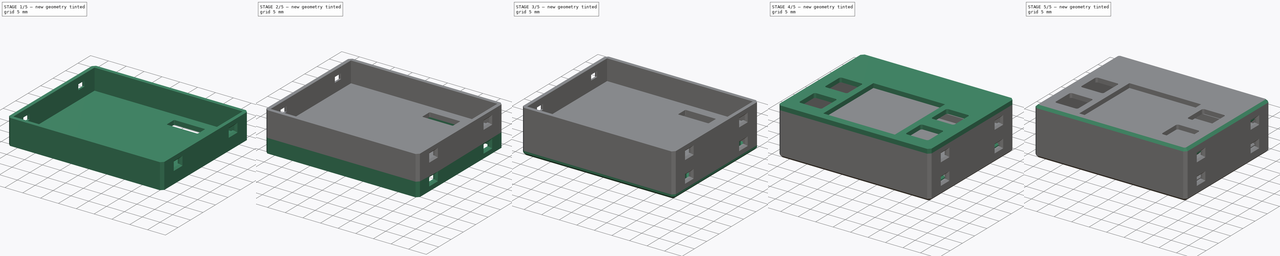
[diagram: build sequence overview — one tinted view per stage of 5, left to right]
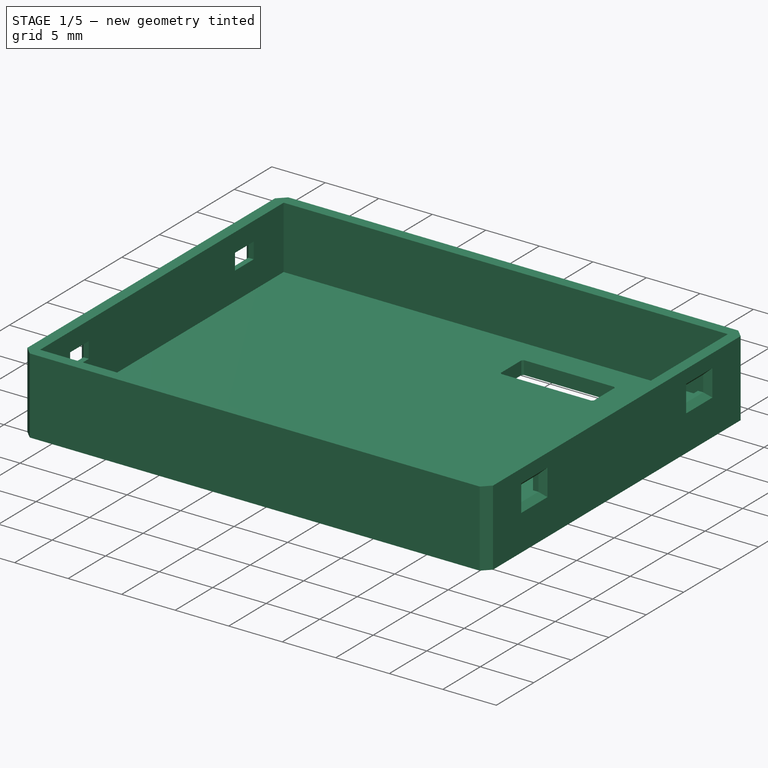
[diagram: stage 1 of 5 — iso view after this stage's code; geometry added in this stage tinted green]
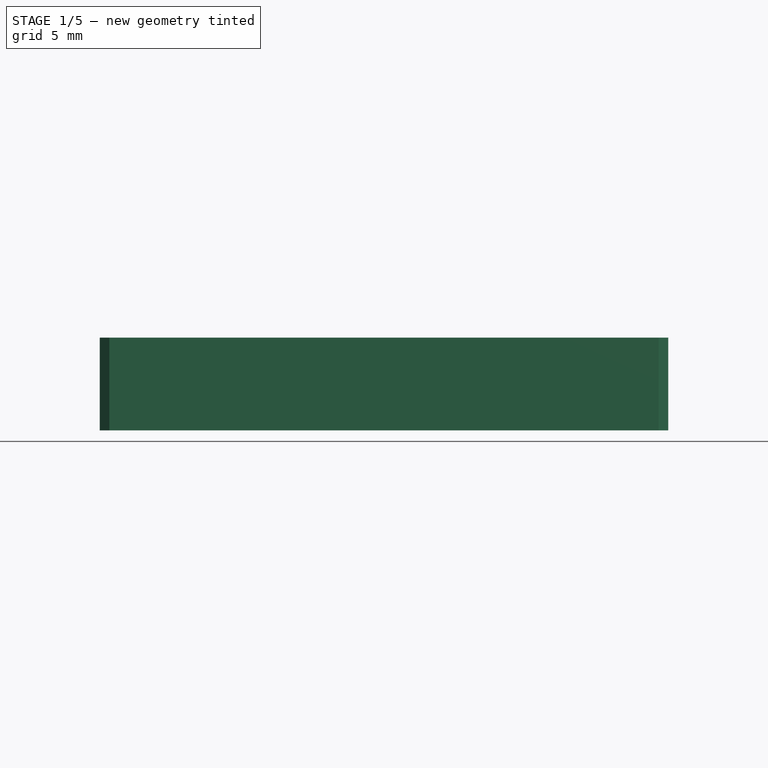
[diagram: stage 1 of 5 — front view after this stage's code; geometry added in this stage tinted green]
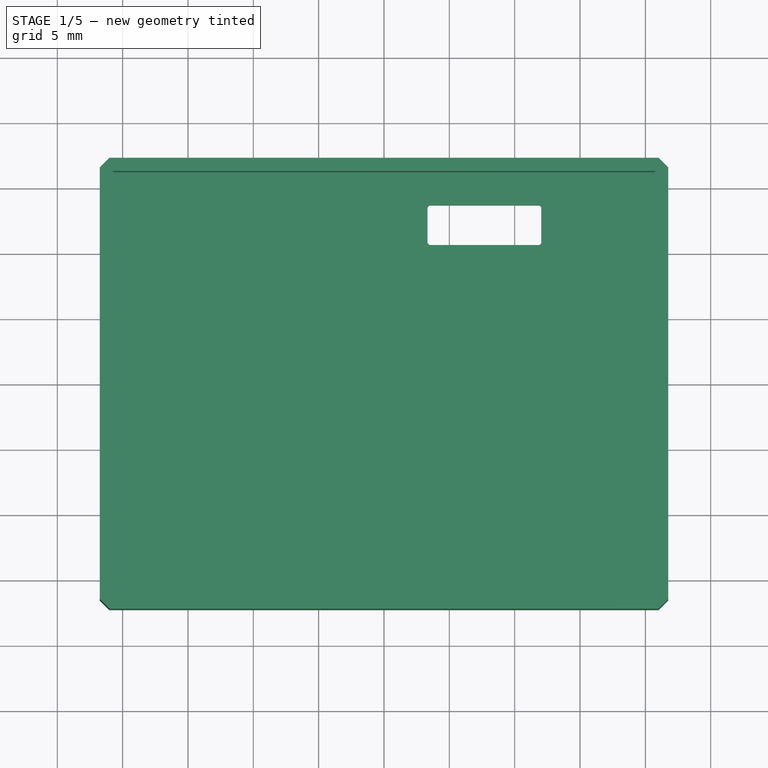
[diagram: stage 1 of 5 — top view after this stage's code; geometry added in this stage tinted green]
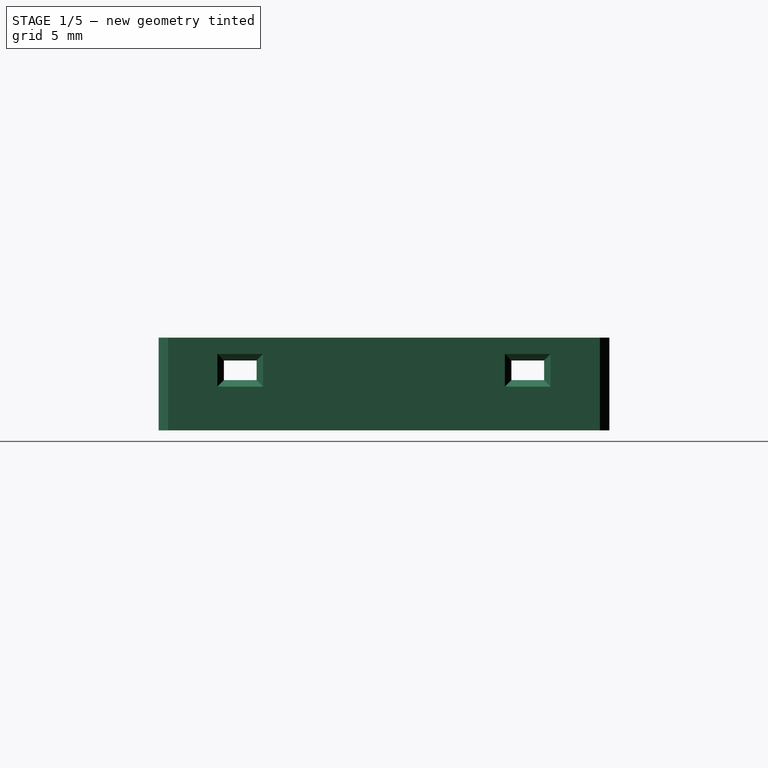
[diagram: stage 1 of 5 — right view after this stage's code; geometry added in this stage tinted green]
FCSTD DOCUMENT  (FreeCAD 0.19R24291 (Git))
Label: notawatch2
License: All rights reserved
LicenseURL: http://en.wikipedia.org/wiki/All_rights_reserved
objects: Sketcher::SketchObject×14, PartDesign::Pad×12, PartDesign::Chamfer×4, PartDesign::Body×3, PartDesign::Pocket×2
note: 53 computed .brp shape members not serialized (recipe doc carries the construction recipe); baked Part::Feature solids carry a one-line shape summary decoded from their .brp

FEATURE [Sketcher::SketchObject] Sketch
  FullyConstrained = true
  MapMode = 5
  Support = -> [XY_Plane]
  sketch-geometry (50):
    g0: LineSegment StartX=-20.5 StartY=16 StartZ=0 EndX=20.5 EndY=16 EndZ=0
    g1: LineSegment StartX=20.5 StartY=16 StartZ=0 EndX=20.5 EndY=-16 EndZ=0
    g2: LineSegment StartX=20.5 StartY=-16 StartZ=0 EndX=-20.5 EndY=-16 EndZ=0
    g3: LineSegment StartX=-20.5 StartY=-16 StartZ=0 EndX=-20.5 EndY=16 EndZ=0
    g4: LineSegment StartX=-20.5 StartY=16 StartZ=0 EndX=20.5 EndY=-16 EndZ=0
    g5: LineSegment StartX=-20.5 StartY=-16 StartZ=0 EndX=20.5 EndY=16 EndZ=0
    g6: LineSegment StartX=-21.75 StartY=16.5178 StartZ=0 EndX=-21.0178 EndY=17.25 EndZ=0
    g7: LineSegment StartX=-21.0178 StartY=17.25 StartZ=0 EndX=21.0178 EndY=17.25 EndZ=0
    g8: LineSegment StartX=21.0178 StartY=17.25 StartZ=0 EndX=21.75 EndY=16.5178 EndZ=0
    g9: LineSegment StartX=21.75 StartY=16.5178 StartZ=0 EndX=21.75 EndY=-16.5178 EndZ=0
    g10: LineSegment StartX=21.75 StartY=-16.5178 StartZ=0 EndX=21.0178 EndY=-17.25 EndZ=0
    g11: LineSegment StartX=21.0178 StartY=-17.25 StartZ=0 EndX=-21.0178 EndY=-17.25 EndZ=0
    g12: LineSegment StartX=-21.0178 StartY=-17.25 StartZ=0 EndX=-21.75 EndY=-16.5178 EndZ=0
    g13: LineSegment StartX=-21.75 StartY=-16.5178 StartZ=0 EndX=-21.75 EndY=16.5178 EndZ=0
    g14: LineSegment StartX=-20.5 StartY=16 StartZ=0 EndX=-21.75 EndY=16.5178 EndZ=0
    g15: LineSegment StartX=-20.5 StartY=16 StartZ=0 EndX=-21.0178 EndY=17.25 EndZ=0
    g16: LineSegment StartX=-21.0178 StartY=17.25 StartZ=0 EndX=-19.9822 EndY=17.25 EndZ=0
    g17: LineSegment StartX=-20.5 StartY=16 StartZ=0 EndX=-19.9822 EndY=17.25 EndZ=0
    g18: LineSegment StartX=21.0178 StartY=-17.25 StartZ=0 EndX=20.5 EndY=-16 EndZ=0
    g19: LineSegment StartX=20.5 StartY=-16 StartZ=0 EndX=21.75 EndY=-16.5178 EndZ=0
    g20: LineSegment StartX=20.5 StartY=-16 StartZ=0 EndX=21.75 EndY=-15.4822 EndZ=0
    g21: LineSegment StartX=21.75 StartY=-16.5178 StartZ=0 EndX=21.75 EndY=-15.4822 EndZ=0
    g22: LineSegment StartX=-20.5 StartY=16 StartZ=0 EndX=3.58148 EndY=11.1755 EndZ=0
    g23: LineSegment StartX=20.5 StartY=16 StartZ=0 EndX=11.7865 EndY=11.1755 EndZ=0
    g24: LineSegment StartX=3.58148 StartY=11.1755 StartZ=0 EndX=3.82897 EndY=10.928 EndZ=0
    g25: LineSegment StartX=11.539 StartY=10.928 StartZ=0 EndX=11.7865 EndY=11.1755 EndZ=0
    g26: LineSegment StartX=3.82897 StartY=10.928 StartZ=0 EndX=11.539 EndY=10.928 EndZ=0
    g27: LineSegment StartX=3.58148 StartY=11.1755 StartZ=0 EndX=3.58148 EndY=10.928 EndZ=0
    g28: LineSegment StartX=3.58148 StartY=10.928 StartZ=0 EndX=3.82897 EndY=10.928 EndZ=0
    g29: LineSegment StartX=11.539 StartY=10.928 StartZ=0 EndX=11.7865 EndY=10.928 EndZ=0
    g30: LineSegment StartX=11.7865 StartY=11.1755 StartZ=0 EndX=11.7865 EndY=10.928 EndZ=0
    g31: LineSegment StartX=3.58148 StartY=11.1755 StartZ=0 EndX=3.58148 EndY=13.468 EndZ=0
    g32: LineSegment StartX=3.58148 StartY=13.468 StartZ=0 EndX=11.7865 EndY=13.468 EndZ=0
    g33: LineSegment StartX=11.7865 StartY=13.468 StartZ=0 EndX=11.7865 EndY=11.1755 EndZ=0
    g34: LineSegment StartX=3.33148 StartY=13.5716 StartZ=0 EndX=3.47793 EndY=13.718 EndZ=0
    g35: LineSegment StartX=3.47793 StartY=13.718 StartZ=0 EndX=11.89 EndY=13.718 EndZ=0
    g36: LineSegment StartX=11.89 StartY=13.718 StartZ=0 EndX=12.0365 EndY=13.5716 EndZ=0
    g37: LineSegment StartX=12.0365 StartY=13.5716 StartZ=0 EndX=12.0365 EndY=10.8245 EndZ=0
    g38: LineSegment StartX=12.0365 StartY=10.8245 StartZ=0 EndX=11.89 EndY=10.678 EndZ=0
    g39: LineSegment StartX=11.89 StartY=10.678 StartZ=0 EndX=3.47793 EndY=10.678 EndZ=0
    g40: LineSegment StartX=3.47793 StartY=10.678 StartZ=0 EndX=3.33148 EndY=10.8245 EndZ=0
    g41: LineSegment StartX=3.33148 StartY=10.8245 StartZ=0 EndX=3.33148 EndY=13.5716 EndZ=0
    g42: LineSegment StartX=3.33148 StartY=13.5716 StartZ=0 EndX=3.58148 EndY=13.468 EndZ=0
    g43: LineSegment StartX=3.47793 StartY=13.718 StartZ=0 EndX=3.58148 EndY=13.468 EndZ=0
    g44: LineSegment StartX=3.68504 StartY=13.718 StartZ=0 EndX=3.58148 EndY=13.468 EndZ=0
    g45: LineSegment StartX=3.68504 StartY=13.718 StartZ=0 EndX=3.47793 EndY=13.718 EndZ=0
    g46: LineSegment StartX=11.7865 StartY=10.928 StartZ=0 EndX=11.89 EndY=10.678 EndZ=0
    g47: LineSegment StartX=12.0365 StartY=10.8245 StartZ=0 EndX=11.7865 EndY=10.928 EndZ=0
    g48: LineSegment StartX=11.7865 StartY=10.928 StartZ=0 EndX=12.0365 EndY=11.0316 EndZ=0
    g49: LineSegment StartX=12.0365 StartY=11.0316 StartZ=0 EndX=12.0365 EndY=10.8245 EndZ=0
  constraints (132):
    c: Coincident(g0,g1)
    c: Coincident(g1,g2)
    c: Coincident(g2,g3)
    c: Coincident(g3,g0)
    c: Horizontal(g0)
    c: Horizontal(g2)
    c: Vertical(g1)
    c: Vertical(g3)
    c: Coincident(g4,g0)
    c: Coincident(g4,g1)
    c: Coincident(g5,g2)
    c: Coincident(g5,g0)
    c: PointOnObject(g-1,g4)
    c: PointOnObject(g-1,g5)
    c: DistanceX(g2,g2) = 41
    c: DistanceY(g3,g3) = 32
    c: Coincident(g6,g7)
    c: Horizontal(g7)
    c: Coincident(g7,g8)
    c: Coincident(g8,g9)
    c: Vertical(g9)
    c: Coincident(g9,g10)
    c: Coincident(g10,g11)
    c: Horizontal(g11)
    c: Coincident(g11,g12)
    c: Coincident(g12,g13)
    c: Vertical(g13)
    c: Coincident(g6,g13)
    c: Equal(g7,g11)
    c: Equal(g9,g13)
    c: Equal(g12,g6)
    c: Equal(g6,g8)
    c: Equal(g8,g10)
    c: Perpendicular(g8,g6)
    c: Coincident(g14,g0)
    c: Coincident(g14,g6)
    c: Coincident(g15,g0)
    c: Coincident(g15,g6)
    c: Horizontal(g16)
    c: Coincident(g17,g0)
    c: Coincident(g17,g16)
    c: Equal(g16,g6)
    c: Equal(g15,g14)
    c: Equal(g14,g17)
    c: Coincident(g6,g16)
    c: Perpendicular(g17,g14)
    c: Coincident(g18,g1)
    c: Coincident(g18,g19)
    c: Coincident(g20,g1)
    c: Equal(g20,g19)
    c: Equal(g19,g18)
    c: Vertical(g21)
    c: Coincident(g21,g20)
    c: Equal(g10,g21)
    c: Coincident(g9,g19)
    c: Coincident(g9,g21)
    c: Coincident(g10,g18)
    c: DistanceY(g0,g6) = 1.25
    c: Coincident(g23,g0)
    c: Coincident(g24,g22)
    c: Coincident(g25,g23)
    c: Coincident(g26,g24)
    c: Coincident(g26,g25)
    c: Horizontal(g26)
    c: Perpendicular(g25,g24)
    c: Equal(g25,g24)
    c: Distance(g22) = 24.56
    c: Distance(g23) = 9.96
    c: Distance(g24) = 0.35
    c: Distance(g26) = 7.71
    c: Coincident(g0,g22)
    c: Coincident(g22,g27)
    c: Vertical(g27)
    c: Coincident(g27,g28)
    c: Coincident(g28,g24)
    c: Horizontal(g28)
    c: Equal(g27,g28)
    c: Coincident(g29,g25)
    c: Horizontal(g29)
    c: Coincident(g30,g23)
    c: Vertical(g30)
    c: Coincident(g29,g30)
    c: Coincident(g22,g31)
    c: Vertical(g31)
    c: Coincident(g31,g32)
    c: Horizontal(g32)
    c: Coincident(g32,g33)
    c: Coincident(g33,g23)
    c: Vertical(g33)
    c: DistanceY(g27,g31) = 2.54
    c: Coincident(g34,g35)
    c: Horizontal(g35)
    c: Coincident(g35,g36)
    c: Coincident(g36,g37)
    c: Vertical(g37)
    c: Coincident(g37,g38)
    c: Coincident(g38,g39)
    c: Horizontal(g39)
    c: Coincident(g39,g40)
    c: Coincident(g40,g41)
    c: Coincident(g41,g34)
    c: Vertical(g41)
    c: Equal(g34,g40)
    c: Equal(g40,g38)
    c: Equal(g38,g36)
    c: Perpendicular(g36,g34)
    c: Equal(g41,g37)
    c: Equal(g35,g39)
    c: Coincident(g42,g34)
    c: Coincident(g42,g31)
    c: Coincident(g43,g34)
    c: Coincident(g43,g31)
    c: Coincident(g44,g31)
    c: Coincident(g45,g44)
    c: Horizontal(g45)
    c: Equal(g45,g34)
    c: Equal(g42,g43)
    c: Equal(g43,g44)
    c: Coincident(g45,g34)
    c: Perpendicular(g44,g42)
    c: Coincident(g46,g29)
    c: Coincident(g46,g38)
    c: Coincident(g47,g37)
    c: Coincident(g47,g29)
    c: Coincident(g48,g29)
    c: Coincident(g49,g48)
    c: Vertical(g49)
    c: Equal(g49,g38)
    c: Coincident(g49,g37)
    c: Equal(g48,g47)
    c: Equal(g47,g46)
    c: DistanceY(g31,g34) = 0.25
FEATURE [PartDesign::Pad] Pad
  Direction = (1,1,1)
  Length = 1.25
  Length2 = 100
  Profile = -> Sketch
  Type = 0
FEATURE [Sketcher::SketchObject] Sketch001
  FullyConstrained = true
  MapMode = 5
  Placement = pos=(0,0,1.25) rot=(0,0,1;0rad)
  Support = -> [Pad]
  sketch-geometry (30):
    g0: LineSegment StartX=-20.5 StartY=16 StartZ=0 EndX=20.5 EndY=16 EndZ=0
    g1: LineSegment StartX=20.5 StartY=16 StartZ=0 EndX=20.5 EndY=-16 EndZ=0
    g2: LineSegment StartX=20.5 StartY=-16 StartZ=0 EndX=-20.5 EndY=-16 EndZ=0
    g3: LineSegment StartX=-20.5 StartY=-16 StartZ=0 EndX=-20.5 EndY=16 EndZ=0
    g4: LineSegment StartX=-20.5 StartY=16 StartZ=0 EndX=20.5 EndY=-16 EndZ=0
    g5: LineSegment StartX=-20.5 StartY=-16 StartZ=0 EndX=20.5 EndY=16 EndZ=0
    g6: LineSegment StartX=-21.75 StartY=16.5178 StartZ=0 EndX=-21.0178 EndY=17.25 EndZ=0
    g7: LineSegment StartX=-21.0178 StartY=17.25 StartZ=0 EndX=21.0178 EndY=17.25 EndZ=0
    g8: LineSegment StartX=21.0178 StartY=17.25 StartZ=0 EndX=21.75 EndY=16.5178 EndZ=0
    g9: LineSegment StartX=21.75 StartY=16.5178 StartZ=0 EndX=21.75 EndY=-16.5178 EndZ=0
    g10: LineSegment StartX=21.75 StartY=-16.5178 StartZ=0 EndX=21.0178 EndY=-17.25 EndZ=0
    g11: LineSegment StartX=21.0178 StartY=-17.25 StartZ=0 EndX=-21.0178 EndY=-17.25 EndZ=0
    g12: LineSegment StartX=-21.0178 StartY=-17.25 StartZ=0 EndX=-21.75 EndY=-16.5178 EndZ=0
    g13: LineSegment StartX=-21.75 StartY=-16.5178 StartZ=0 EndX=-21.75 EndY=16.5178 EndZ=0
    g14: LineSegment StartX=-20.5 StartY=16 StartZ=0 EndX=-21.75 EndY=16.5178 EndZ=0
    g15: LineSegment StartX=-21.0178 StartY=17.25 StartZ=0 EndX=-20.5 EndY=16 EndZ=0
    g16: LineSegment StartX=-20.5 StartY=16 StartZ=0 EndX=-19.9822 EndY=17.25 EndZ=0
    g17: LineSegment StartX=-21.0178 StartY=17.25 StartZ=0 EndX=-19.9822 EndY=17.25 EndZ=0
    g18: LineSegment StartX=20.5 StartY=-16 StartZ=0 EndX=21.0178 EndY=-17.25 EndZ=0
    g19: LineSegment StartX=20.5 StartY=-16 StartZ=0 EndX=21.75 EndY=-16.5178 EndZ=0
    g20: LineSegment StartX=20.5 StartY=-16 StartZ=0 EndX=21.75 EndY=-15.4822 EndZ=0
    g21: LineSegment StartX=21.75 StartY=-15.4822 StartZ=0 EndX=21.75 EndY=-16.5178 EndZ=0
    g22: LineSegment StartX=-20.75 StartY=16.25 StartZ=0 EndX=20.75 EndY=16.25 EndZ=0
    g23: LineSegment StartX=20.75 StartY=16.25 StartZ=0 EndX=20.75 EndY=-16.25 EndZ=0
    g24: LineSegment StartX=20.75 StartY=-16.25 StartZ=0 EndX=-20.75 EndY=-16.25 EndZ=0
    g25: LineSegment StartX=-20.75 StartY=-16.25 StartZ=0 EndX=-20.75 EndY=16.25 EndZ=0
    g26: LineSegment StartX=20.5 StartY=-16 StartZ=0 EndX=20.5 EndY=-16.25 EndZ=0
    g27: LineSegment StartX=20.5 StartY=-16 StartZ=0 EndX=20.75 EndY=-16 EndZ=0
    g28: LineSegment StartX=-20.5 StartY=16 StartZ=0 EndX=-20.75 EndY=16 EndZ=0
    g29: LineSegment StartX=-20.5 StartY=16 StartZ=0 EndX=-20.5 EndY=16.25 EndZ=0
  constraints (82):
    c: Coincident(g0,g1)
    c: Coincident(g1,g2)
    c: Coincident(g2,g3)
    c: Coincident(g3,g0)
    c: Horizontal(g0)
    c: Horizontal(g2)
    c: Vertical(g1)
    c: Vertical(g3)
    c: Coincident(g4,g0)
    c: Coincident(g4,g1)
    c: Coincident(g5,g2)
    c: Coincident(g5,g0)
    c: PointOnObject(g-1,g4)
    c: PointOnObject(g-1,g5)
    c: DistanceX(g2,g2) = 41
    c: DistanceY(g3,g3) = 32
    c: Coincident(g6,g7)
    c: Horizontal(g7)
    c: Coincident(g7,g8)
    c: Coincident(g8,g9)
    c: Vertical(g9)
    c: Coincident(g9,g10)
    c: Coincident(g10,g11)
    c: Horizontal(g11)
    c: Coincident(g11,g12)
    c: Coincident(g12,g13)
    c: Coincident(g13,g6)
    c: Vertical(g13)
    c: Equal(g7,g11)
    c: Equal(g13,g9)
    c: Equal(g6,g8)
    c: Equal(g8,g12)
    c: Equal(g12,g10)
    c: Perpendicular(g8,g6)
    c: Coincident(g14,g0)
    c: Coincident(g14,g6)
    c: Coincident(g15,g6)
    c: Coincident(g15,g0)
    c: Coincident(g16,g0)
    c: Coincident(g17,g16)
    c: Horizontal(g17)
    c: Equal(g17,g6)
    c: Coincident(g6,g17)
    c: Equal(g14,g15)
    c: Equal(g15,g16)
    c: DistanceY(g0,g6) = 1.25
    c: Equal(g18,g19)
    c: Equal(g19,g20)
    c: Coincident(g1,g18)
    c: Coincident(g1,g19)
    c: Coincident(g1,g20)
    c: Coincident(g9,g19)
    c: Coincident(g21,g20)
    c: Vertical(g21)
    c: Equal(g21,g10)
    c: Coincident(g9,g21)
    c: Coincident(g10,g18)
    c: Perpendicular(g16,g14)
    c: Coincident(g22,g23)
    c: Coincident(g23,g24)
    c: Coincident(g24,g25)
    c: Coincident(g25,g22)
    c: Horizontal(g22)
    c: Horizontal(g24)
    c: Vertical(g23)
    c: Vertical(g25)
    c: Coincident(g26,g1)
    c: PointOnObject(g26,g24)
    c: Vertical(g26)
    c: Coincident(g27,g1)
    c: PointOnObject(g27,g23)
    c: Horizontal(g27)
    c: Equal(g27,g26)
    c: Coincident(g28,g0)
    c: PointOnObject(g28,g25)
    c: Horizontal(g28)
    c: Coincident(g29,g0)
    c: PointOnObject(g29,g22)
    c: Vertical(g29)
    c: Equal(g29,g28)
    c: Equal(g28,g27)
    c: DistanceY(g29,g29) = 0.25
FEATURE [PartDesign::Pad] Pad001
  BaseFeature = -> Pad
  Direction = (1,1,1)
  Length = 5.85
  Length2 = 100
  Profile = -> Sketch001
  Type = 0
FEATURE [Sketcher::SketchObject] Sketch002
  ExternalGeometry = -> [Pad001]
  FullyConstrained = true
  MapMode = 5
  Placement = pos=(-21.75,0,0) rot=(0.57735,-0.57735,-0.57735;2.0944rad)
  Support = -> [Pad001]
  sketch-geometry (29):
    g0: LineSegment StartX=-12 StartY=5.1 StartZ=0 EndX=-10 EndY=5.1 EndZ=0
    g1: LineSegment StartX=-10 StartY=5.1 StartZ=0 EndX=-10 EndY=4.1 EndZ=0
    g2: LineSegment StartX=-10 StartY=4.1 StartZ=0 EndX=-12 EndY=4.1 EndZ=0
    g3: LineSegment StartX=-12 StartY=4.1 StartZ=0 EndX=-12 EndY=5.1 EndZ=0
    g4: LineSegment StartX=10 StartY=5.1 StartZ=0 EndX=12 EndY=5.1 EndZ=0
    g5: LineSegment StartX=12 StartY=5.1 StartZ=0 EndX=12 EndY=4.1 EndZ=0
    g6: LineSegment StartX=12 StartY=4.1 StartZ=0 EndX=10 EndY=4.1 EndZ=0
    g7: LineSegment StartX=10 StartY=4.1 StartZ=0 EndX=10 EndY=5.1 EndZ=0
    g8: LineSegment StartX=-10 StartY=5.1 StartZ=0 EndX=10 EndY=5.1 EndZ=0
    g9: LineSegment StartX=10 StartY=5.1 StartZ=0 EndX=-10 EndY=4.1 EndZ=0
    g10: LineSegment StartX=-10 StartY=5.1 StartZ=0 EndX=10 EndY=4.1 EndZ=0
    g11: GeomPoint X=0 Y=4.6 Z=0
    g12: LineSegment StartX=-12 StartY=5.1 StartZ=0 EndX=-12 EndY=7.1 EndZ=0
    g13: LineSegment StartX=-12.25 StartY=5.35 StartZ=0 EndX=-9.75 EndY=5.35 EndZ=0
    g14: LineSegment StartX=-9.75 StartY=5.35 StartZ=0 EndX=-9.75 EndY=3.85 EndZ=0
    g15: LineSegment StartX=-9.75 StartY=3.85 StartZ=0 EndX=-12.25 EndY=3.85 EndZ=0
    g16: LineSegment StartX=-12.25 StartY=3.85 StartZ=0 EndX=-12.25 EndY=5.35 EndZ=0
    g17: LineSegment StartX=9.75 StartY=5.35 StartZ=0 EndX=12.25 EndY=5.35 EndZ=0
    g18: LineSegment StartX=12.25 StartY=5.35 StartZ=0 EndX=12.25 EndY=3.85 EndZ=0
    g19: LineSegment StartX=12.25 StartY=3.85 StartZ=0 EndX=9.75 EndY=3.85 EndZ=0
    g20: LineSegment StartX=9.75 StartY=3.85 StartZ=0 EndX=9.75 EndY=5.35 EndZ=0
    g21: LineSegment StartX=-12 StartY=5.1 StartZ=0 EndX=-12 EndY=5.35 EndZ=0
    g22: LineSegment StartX=-12 StartY=5.1 StartZ=0 EndX=-12.25 EndY=5.1 EndZ=0
    g23: LineSegment StartX=-10 StartY=4.1 StartZ=0 EndX=-9.75 EndY=4.1 EndZ=0
    g24: LineSegment StartX=-10 StartY=4.1 StartZ=0 EndX=-10 EndY=3.85 EndZ=0
    g25: LineSegment StartX=10 StartY=5.1 StartZ=0 EndX=10 EndY=5.35 EndZ=0
    g26: LineSegment StartX=10 StartY=5.1 StartZ=0 EndX=9.75 EndY=5.1 EndZ=0
    g27: LineSegment StartX=12 StartY=4.1 StartZ=0 EndX=12.25 EndY=4.1 EndZ=0
    g28: LineSegment StartX=12 StartY=4.1 StartZ=0 EndX=12 EndY=3.85 EndZ=0
  constraints (83):
    c: Coincident(g0,g1)
    c: Coincident(g1,g2)
    c: Coincident(g2,g3)
    c: Coincident(g3,g0)
    c: Horizontal(g0)
    c: Horizontal(g2)
    c: Vertical(g1)
    c: Vertical(g3)
    c: Coincident(g4,g5)
    c: Coincident(g5,g6)
    c: Coincident(g6,g7)
    c: Coincident(g7,g4)
    c: Horizontal(g4)
    c: Horizontal(g6)
    c: Vertical(g5)
    c: Vertical(g7)
    c: Coincident(g8,g0)
    c: Coincident(g8,g4)
    c: Horizontal(g8)
    c: Coincident(g9,g4)
    c: Coincident(g9,g1)
    c: Coincident(g10,g0)
    c: Coincident(g10,g6)
    c: PointOnObject(g11,g9)
    c: PointOnObject(g11,g10)
    c: PointOnObject(g11,g-2)
    c: Equal(g0,g4)
    c: Equal(g1,g7)
    c: Coincident(g12,g0)
    c: PointOnObject(g12,g-3)
    c: Vertical(g12)
    c: DistanceY(g12,g12) = 2
    c: DistanceY(g3,g3) = 1
    c: DistanceX(g8,g8) = 20
    c: Coincident(g13,g14)
    c: Coincident(g14,g15)
    c: Coincident(g15,g16)
    c: Coincident(g16,g13)
    c: Horizontal(g13)
    c: Horizontal(g15)
    c: Vertical(g14)
    c: Vertical(g16)
    c: Coincident(g17,g18)
    c: Coincident(g18,g19)
    c: Coincident(g19,g20)
    c: Coincident(g20,g17)
    c: Horizontal(g17)
    c: Horizontal(g19)
    c: Vertical(g18)
    c: Vertical(g20)
    c: Coincident(g21,g0)
    c: PointOnObject(g21,g13)
    c: Coincident(g22,g0)
    c: PointOnObject(g22,g16)
    c: Coincident(g23,g1)
    c: PointOnObject(g23,g14)
    c: Horizontal(g23)
    c: Coincident(g24,g1)
    c: PointOnObject(g24,g15)
    c: Vertical(g24)
    c: Coincident(g25,g4)
    c: PointOnObject(g25,g17)
    c: Coincident(g26,g4)
    c: PointOnObject(g26,g20)
    c: Coincident(g27,g5)
    c: PointOnObject(g27,g18)
    c: Horizontal(g27)
    c: Coincident(g28,g5)
    c: PointOnObject(g28,g19)
    c: Vertical(g28)
    c: Equal(g28,g27)
    c: Equal(g27,g25)
    c: Equal(g25,g26)
    c: Equal(g26,g24)
    c: Equal(g24,g23)
    c: Equal(g23,g22)
    c: Equal(g22,g21)
    c: DistanceY(g21,g21) = 0.25
    c: Horizontal(g22)
    c: Vertical(g21)
    c: Horizontal(g26)
    c: Vertical(g25)
    c: DistanceX(g0,g0) = 2
FEATURE [PartDesign::Pocket] Pocket
  BaseFeature = -> Pad001
  Length = 45
  Length2 = 100
  Profile = -> Sketch002
  Type = 0
FEATURE [PartDesign::Chamfer] Chamfer001
  Angle = 45
  Base = -> Pocket [Edge92,Edge95,Edge94,Edge93,Edge96,Edge99,Edge98,Edge97,Edge35,Edge38,Edge37,Edge36,Edge31,Edge34,Edge33,Edge32]
  BaseFeature = -> Pocket
  ChamferType = 0
  FlipDirection = false
  Size = 0.5
  Size2 = 1
  SupportTransform = false
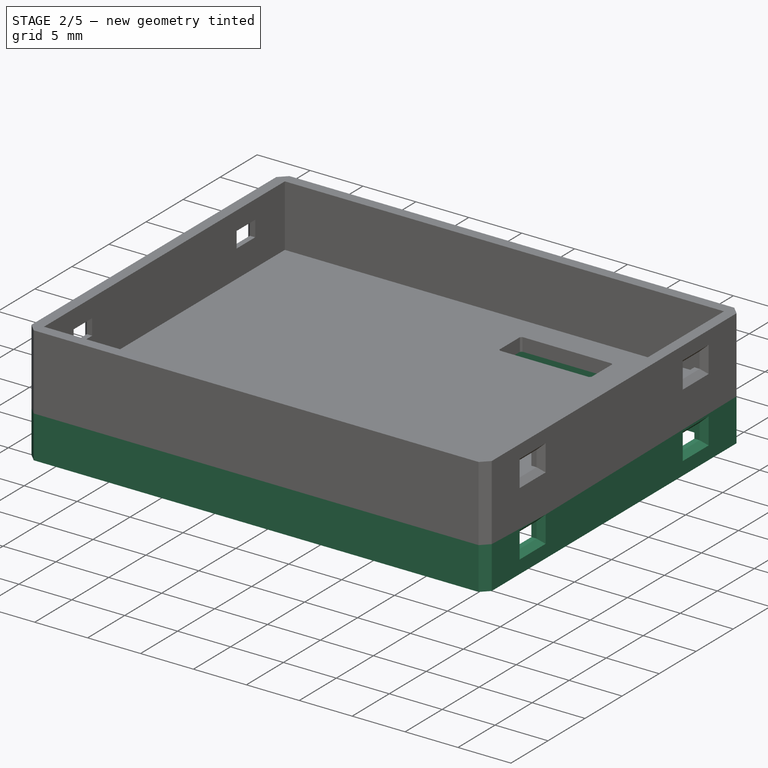
[diagram: stage 2 of 5 — iso view after this stage's code; geometry added in this stage tinted green]
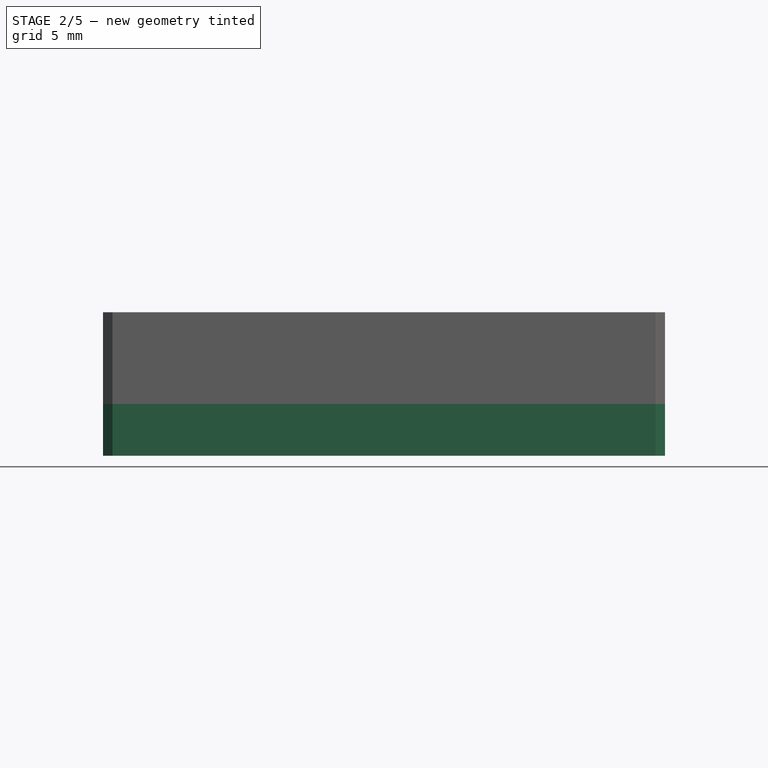
[diagram: stage 2 of 5 — front view after this stage's code; geometry added in this stage tinted green]
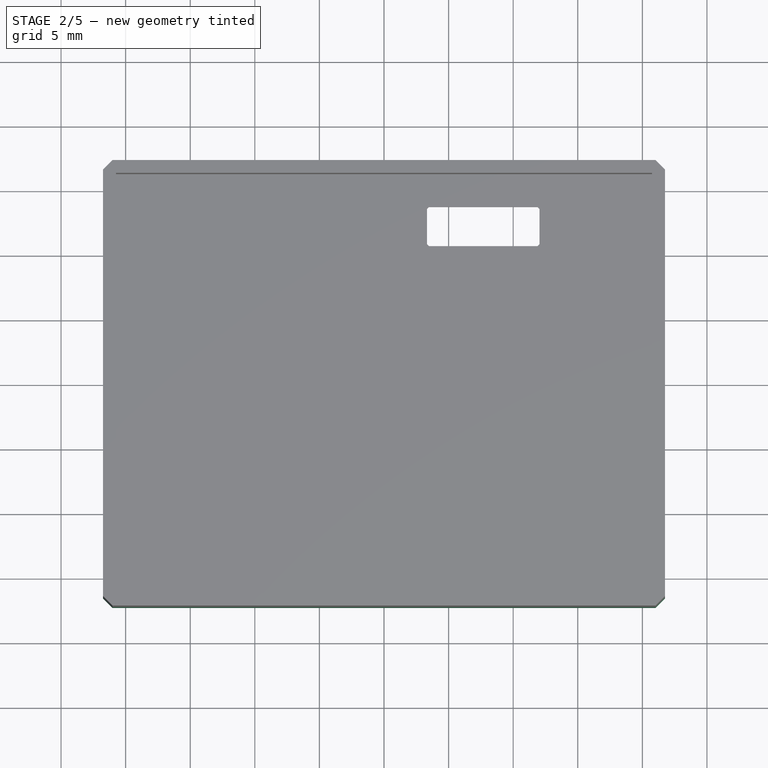
[diagram: stage 2 of 5 — top view after this stage's code; geometry added in this stage tinted green]
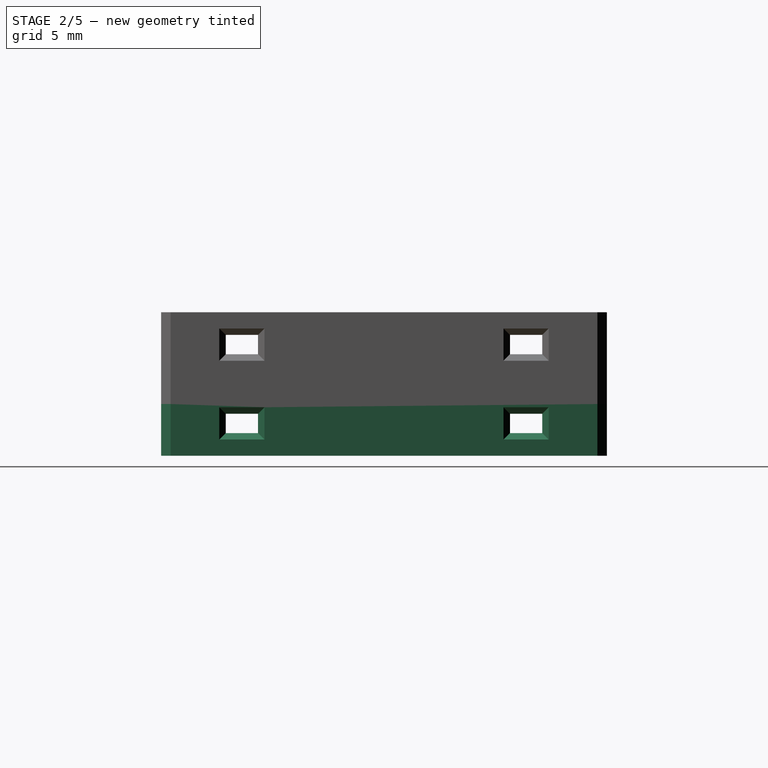
[diagram: stage 2 of 5 — right view after this stage's code; geometry added in this stage tinted green]
FEATURE [PartDesign::Body] Body001  label="PCBCover"
  Group = -> [Sketch003,Pad002,Chamfer,Sketch004,Pad003,Sketch005,Pad004,Sketch006,Pad005]
  Origin = -> Origin001
  Tip = -> Pad005
FEATURE [Sketcher::SketchObject] Sketch007
  ExternalGeometry = -> [Chamfer001]
  FullyConstrained = true
  MapMode = 5
  Placement = pos=(0,0,0) rot=(1,0,0;3.14159rad)
  Support = -> [Chamfer001]
  sketch-geometry (12):
    g0: LineSegment StartX=-20.75 StartY=16.25 StartZ=0 EndX=-20.75 EndY=-16.25 EndZ=0
    g1: LineSegment StartX=-20.75 StartY=-16.25 StartZ=0 EndX=20.75 EndY=-16.25 EndZ=0
    g2: LineSegment StartX=20.75 StartY=-16.25 StartZ=0 EndX=20.75 EndY=16.25 EndZ=0
    g3: LineSegment StartX=20.75 StartY=16.25 StartZ=0 EndX=-20.75 EndY=16.25 EndZ=0
    g4: LineSegment StartX=-21.75 StartY=16.5178 StartZ=0 EndX=-21.0178 EndY=17.25 EndZ=0
    g5: LineSegment StartX=-21.0178 StartY=17.25 StartZ=0 EndX=21.0178 EndY=17.25 EndZ=0
    g6: LineSegment StartX=21.0178 StartY=17.25 StartZ=0 EndX=21.75 EndY=16.5178 EndZ=0
    g7: LineSegment StartX=21.75 StartY=16.5178 StartZ=0 EndX=21.75 EndY=-16.5178 EndZ=0
    g8: LineSegment StartX=21.75 StartY=-16.5178 StartZ=0 EndX=21.0178 EndY=-17.25 EndZ=0
    g9: LineSegment StartX=21.0178 StartY=-17.25 StartZ=0 EndX=-21.0178 EndY=-17.25 EndZ=0
    g10: LineSegment StartX=-21.0178 StartY=-17.25 StartZ=0 EndX=-21.75 EndY=-16.5178 EndZ=0
    g11: LineSegment StartX=-21.75 StartY=-16.5178 StartZ=0 EndX=-21.75 EndY=16.5178 EndZ=0
  constraints (24):
    c: Coincident(g0,g-9)
    c: Coincident(g0,g-8)
    c: Coincident(g1,g0)
    c: Coincident(g1,g-10)
    c: Coincident(g2,g1)
    c: Coincident(g2,g-10)
    c: Coincident(g3,g2)
    c: Coincident(g3,g0)
    c: Coincident(g-4,g4)
    c: Coincident(g4,g-3)
    c: Coincident(g4,g5)
    c: Coincident(g5,g-3)
    c: Coincident(g5,g6)
    c: Coincident(g6,g-5)
    c: Coincident(g6,g7)
    c: Coincident(g7,g-5)
    c: Coincident(g7,g8)
    c: Coincident(g8,g-6)
    c: Coincident(g8,g9)
    c: Coincident(g9,g-6)
    c: Coincident(g9,g10)
    c: Coincident(g10,g-4)
    c: Coincident(g10,g11)
    c: Coincident(g11,g4)
FEATURE [PartDesign::Pad] Pad006
  BaseFeature = -> Chamfer001
  Direction = (1,1,1)
  Length = 4
  Length2 = 100
  Profile = -> Sketch007
  Type = 0
FEATURE [Sketcher::SketchObject] Sketch008
  ExternalGeometry = -> [Pad006]
  FullyConstrained = true
  MapMode = 5
  Placement = pos=(-21.75,0,0) rot=(0.57735,-0.57735,-0.57735;2.0944rad)
  Support = -> [Pad006]
  sketch-geometry (31):
    g0: LineSegment StartX=-12 StartY=-1 StartZ=0 EndX=-10 EndY=-1 EndZ=0
    g1: LineSegment StartX=-10 StartY=-1 StartZ=0 EndX=-10 EndY=-2 EndZ=0
    g2: LineSegment StartX=-10 StartY=-2 StartZ=0 EndX=-12 EndY=-2 EndZ=0
    g3: LineSegment StartX=-12 StartY=-2 StartZ=0 EndX=-12 EndY=-1 EndZ=0
    g4: LineSegment StartX=10 StartY=-1 StartZ=0 EndX=12 EndY=-1 EndZ=0
    g5: LineSegment StartX=12 StartY=-1 StartZ=0 EndX=12 EndY=-2 EndZ=0
    g6: LineSegment StartX=12 StartY=-2 StartZ=0 EndX=10 EndY=-2 EndZ=0
    g7: LineSegment StartX=10 StartY=-2 StartZ=0 EndX=10 EndY=-1 EndZ=0
    g8: LineSegment StartX=-10 StartY=-1 StartZ=0 EndX=10 EndY=-1 EndZ=0
    g9: LineSegment StartX=10 StartY=-2 StartZ=0 EndX=-10 EndY=-2 EndZ=0
    g10: LineSegment StartX=-10 StartY=-1 StartZ=0 EndX=10 EndY=-2 EndZ=0
    g11: LineSegment StartX=10 StartY=-1 StartZ=0 EndX=-10 EndY=-2 EndZ=0
    g12: GeomPoint X=0 Y=-1.5 Z=0
    g13: LineSegment StartX=-12 StartY=-1 StartZ=0 EndX=12 EndY=-2 EndZ=0
    g14: LineSegment StartX=-12 StartY=-2 StartZ=0 EndX=-12 EndY=-4 EndZ=0
    g15: LineSegment StartX=-12.25 StartY=-0.75 StartZ=0 EndX=-9.75 EndY=-0.75 EndZ=0
    g16: LineSegment StartX=-9.75 StartY=-0.75 StartZ=0 EndX=-9.75 EndY=-2.25 EndZ=0
    g17: LineSegment StartX=-9.75 StartY=-2.25 StartZ=0 EndX=-12.25 EndY=-2.25 EndZ=0
    g18: LineSegment StartX=-12.25 StartY=-2.25 StartZ=0 EndX=-12.25 EndY=-0.75 EndZ=0
    g19: LineSegment StartX=-12 StartY=-1 StartZ=0 EndX=-12 EndY=-0.75 EndZ=0
    g20: LineSegment StartX=-12 StartY=-1 StartZ=0 EndX=-12.25 EndY=-1 EndZ=0
    g21: LineSegment StartX=-10 StartY=-2 StartZ=0 EndX=-10 EndY=-2.25 EndZ=0
    g22: LineSegment StartX=-10 StartY=-2 StartZ=0 EndX=-9.75 EndY=-2 EndZ=0
    g23: LineSegment StartX=9.75 StartY=-0.75 StartZ=0 EndX=12.25 EndY=-0.75 EndZ=0
    g24: LineSegment StartX=12.25 StartY=-0.75 StartZ=0 EndX=12.25 EndY=-2.25 EndZ=0
    g25: LineSegment StartX=12.25 StartY=-2.25 StartZ=0 EndX=9.75 EndY=-2.25 EndZ=0
    g26: LineSegment StartX=9.75 StartY=-2.25 StartZ=0 EndX=9.75 EndY=-0.75 EndZ=0
    g27: LineSegment StartX=10 StartY=-1 StartZ=0 EndX=9.75 EndY=-1 EndZ=0
    g28: LineSegment StartX=10 StartY=-1 StartZ=0 EndX=10 EndY=-0.75 EndZ=0
    g29: LineSegment StartX=12 StartY=-2 StartZ=0 EndX=12.25 EndY=-2 EndZ=0
    g30: LineSegment StartX=12 StartY=-2 StartZ=0 EndX=12 EndY=-2.25 EndZ=0
  constraints (87):
    c: Coincident(g0,g1)
    c: Coincident(g1,g2)
    c: Coincident(g2,g3)
    c: Coincident(g3,g0)
    c: Horizontal(g0)
    c: Horizontal(g2)
    c: Vertical(g1)
    c: Vertical(g3)
    c: Coincident(g4,g5)
    c: Coincident(g5,g6)
    c: Coincident(g6,g7)
    c: Coincident(g7,g4)
    c: Horizontal(g4)
    c: Horizontal(g6)
    c: Vertical(g5)
    c: Vertical(g7)
    c: Coincident(g8,g0)
    c: Coincident(g8,g4)
    c: Horizontal(g8)
    c: Coincident(g9,g6)
    c: Coincident(g9,g1)
    c: Horizontal(g9)
    c: Coincident(g10,g0)
    c: Coincident(g10,g6)
    c: Coincident(g11,g4)
    c: Coincident(g11,g1)
    c: PointOnObject(g12,g10)
    c: PointOnObject(g12,g11)
    c: PointOnObject(g12,g-2)
    c: Coincident(g13,g0)
    c: Coincident(g13,g5)
    c: PointOnObject(g12,g13)
    c: DistanceX(g0,g0) = 2
    c: DistanceX(g8,g8) = 20
    c: DistanceY(g3,g3) = 1
    c: Coincident(g14,g2)
    c: PointOnObject(g14,g-3)
    c: Vertical(g14)
    c: DistanceY(g14,g14) = 2
    c: Coincident(g15,g16)
    c: Coincident(g16,g17)
    c: Coincident(g17,g18)
    c: Coincident(g18,g15)
    c: Horizontal(g15)
    c: Horizontal(g17)
    c: Vertical(g16)
    c: Vertical(g18)
    c: Coincident(g19,g0)
    c: PointOnObject(g19,g15)
    c: Coincident(g20,g0)
    c: PointOnObject(g20,g18)
    c: Coincident(g21,g1)
    c: PointOnObject(g21,g17)
    c: Vertical(g21)
    c: Coincident(g22,g1)
    c: PointOnObject(g22,g16)
    c: Coincident(g23,g24)
    c: Coincident(g24,g25)
    c: Coincident(g25,g26)
    c: Coincident(g26,g23)
    c: Horizontal(g23)
    c: Horizontal(g25)
    c: Vertical(g24)
    c: Vertical(g26)
    c: Coincident(g27,g4)
    c: PointOnObject(g27,g26)
    c: Coincident(g28,g4)
    c: PointOnObject(g28,g23)
    c: Coincident(g29,g5)
    c: PointOnObject(g29,g24)
    c: Horizontal(g29)
    c: PointOnObject(g30,g25)
    c: Coincident(g5,g30)
    c: Vertical(g30)
    c: Equal(g30,g29)
    c: Equal(g29,g27)
    c: Equal(g27,g28)
    c: Equal(g28,g21)
    c: Equal(g21,g22)
    c: Equal(g22,g20)
    c: Equal(g20,g19)
    c: Horizontal(g20)
    c: Vertical(g19)
    c: Horizontal(g22)
    c: Horizontal(g27)
    c: Vertical(g28)
    c: DistanceY(g19,g19) = 0.25
FEATURE [PartDesign::Pocket] Pocket001
  BaseFeature = -> Pad006
  Length = 45
  Length2 = 100
  Profile = -> Sketch008
  Type = 0
FEATURE [PartDesign::Chamfer] Chamfer002
  Angle = 45
  Base = -> Pocket001 [Edge188,Edge185,Edge187,Edge186,Edge189,Edge192,Edge191,Edge190,Edge67,Edge64,Edge65,Edge66,Edge68,Edge71,Edge70,Edge69]
  BaseFeature = -> Pocket001
  ChamferType = 0
  FlipDirection = false
  Size = 0.5
  Size2 = 1
  SupportTransform = false
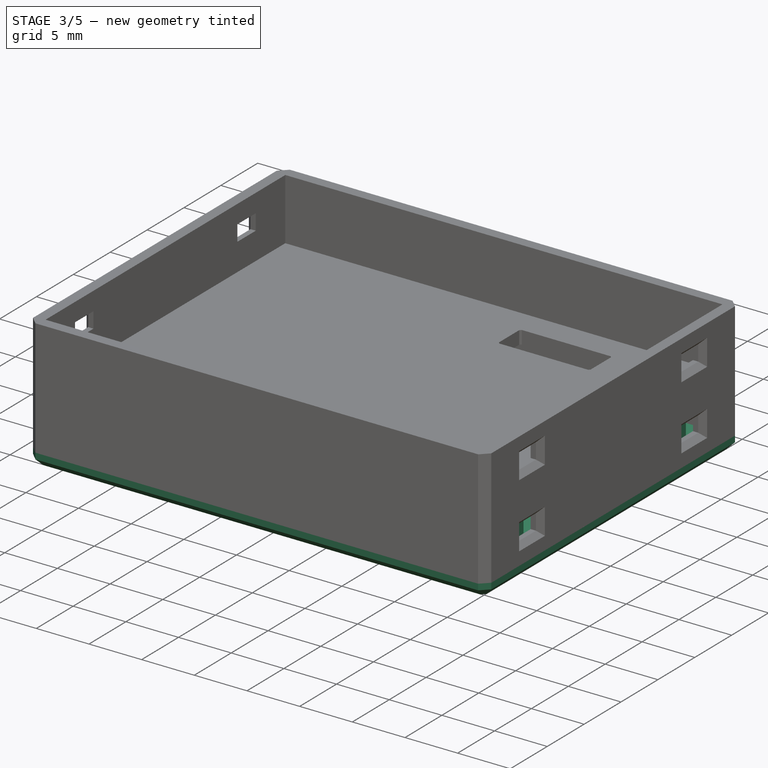
[diagram: stage 3 of 5 — iso view after this stage's code; geometry added in this stage tinted green]
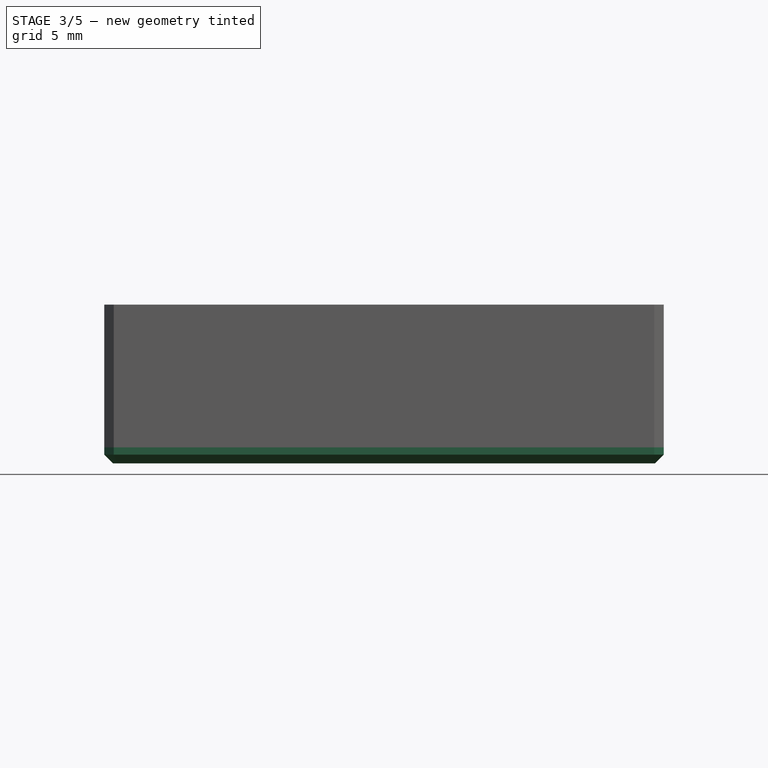
[diagram: stage 3 of 5 — front view after this stage's code; geometry added in this stage tinted green]
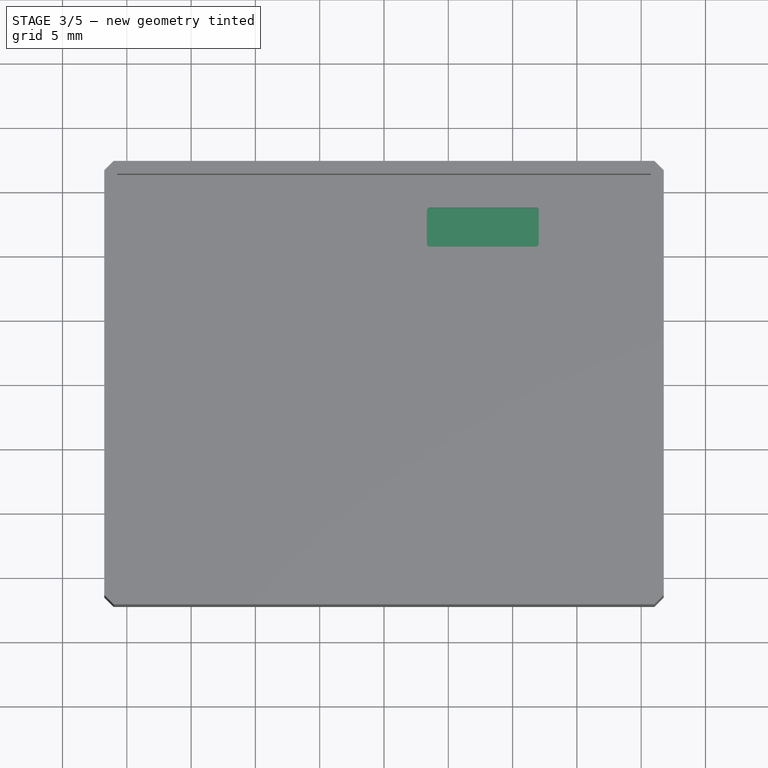
[diagram: stage 3 of 5 — top view after this stage's code; geometry added in this stage tinted green]
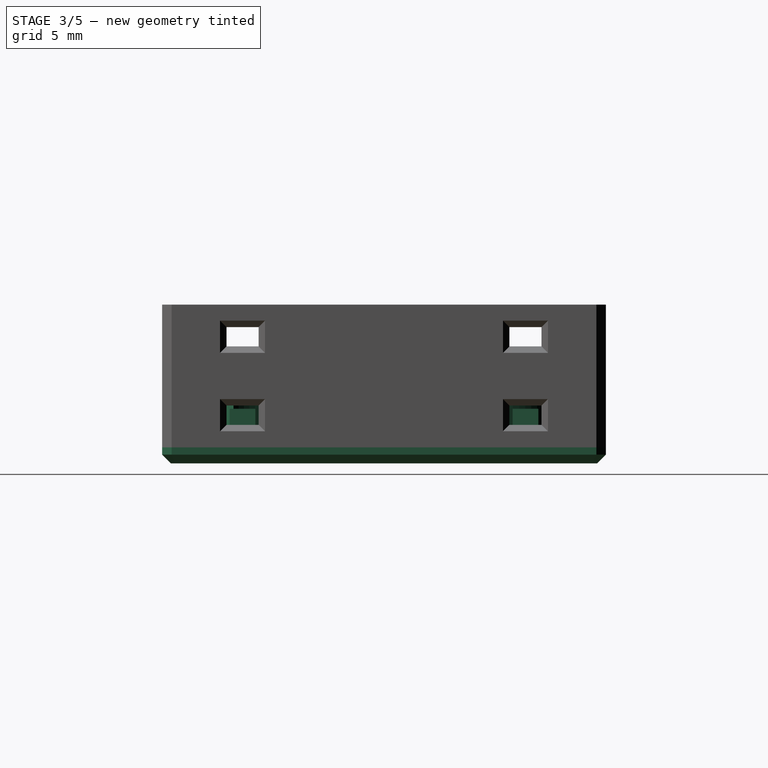
[diagram: stage 3 of 5 — right view after this stage's code; geometry added in this stage tinted green]
FEATURE [Sketcher::SketchObject] Sketch009
  AttachmentOffset = pos=(0,0,-4) rot=(0,0,1;0rad)
  FullyConstrained = true
  MapMode = 5
  Placement = pos=(0,0,-4) rot=(0,0,1;0rad)
  Support = -> [XY_Plane002]
  sketch-geometry (22):
    g0: LineSegment StartX=-20.5 StartY=16 StartZ=0 EndX=20.5 EndY=16 EndZ=0
    g1: LineSegment StartX=20.5 StartY=16 StartZ=0 EndX=20.5 EndY=-16 EndZ=0
    g2: LineSegment StartX=20.5 StartY=-16 StartZ=0 EndX=-20.5 EndY=-16 EndZ=0
    g3: LineSegment StartX=-20.5 StartY=-16 StartZ=0 EndX=-20.5 EndY=16 EndZ=0
    g4: LineSegment StartX=-20.5 StartY=16 StartZ=0 EndX=20.5 EndY=-16 EndZ=0
    g5: LineSegment StartX=-20.5 StartY=-16 StartZ=0 EndX=20.5 EndY=16 EndZ=0
    g6: LineSegment StartX=-21.75 StartY=16.5178 StartZ=0 EndX=-21.0178 EndY=17.25 EndZ=0
    g7: LineSegment StartX=-21.0178 StartY=17.25 StartZ=0 EndX=21.0178 EndY=17.25 EndZ=0
    g8: LineSegment StartX=21.0178 StartY=17.25 StartZ=0 EndX=21.75 EndY=16.5178 EndZ=0
    g9: LineSegment StartX=21.75 StartY=16.5178 StartZ=0 EndX=21.75 EndY=-16.5178 EndZ=0
    g10: LineSegment StartX=21.75 StartY=-16.5178 StartZ=0 EndX=21.0178 EndY=-17.25 EndZ=0
    g11: LineSegment StartX=21.0178 StartY=-17.25 StartZ=0 EndX=-21.0178 EndY=-17.25 EndZ=0
    g12: LineSegment StartX=-21.0178 StartY=-17.25 StartZ=0 EndX=-21.75 EndY=-16.5178 EndZ=0
    g13: LineSegment StartX=-21.75 StartY=-16.5178 StartZ=0 EndX=-21.75 EndY=16.5178 EndZ=0
    g14: LineSegment StartX=-21.75 StartY=16.5178 StartZ=0 EndX=-20.5 EndY=16 EndZ=0
    g15: LineSegment StartX=-20.5 StartY=16 StartZ=0 EndX=-21.0178 EndY=17.25 EndZ=0
    g16: LineSegment StartX=-19.9822 StartY=17.25 StartZ=0 EndX=-20.5 EndY=16 EndZ=0
    g17: LineSegment StartX=-19.9822 StartY=17.25 StartZ=0 EndX=-21.0178 EndY=17.25 EndZ=0
    g18: LineSegment StartX=20.5 StartY=-16 StartZ=0 EndX=21.0178 EndY=-17.25 EndZ=0
    g19: LineSegment StartX=20.5 StartY=-16 StartZ=0 EndX=21.75 EndY=-16.5178 EndZ=0
    g20: LineSegment StartX=21.75 StartY=-15.4822 StartZ=0 EndX=20.5 EndY=-16 EndZ=0
    g21: LineSegment StartX=21.75 StartY=-15.4822 StartZ=0 EndX=21.75 EndY=-16.5178 EndZ=0
  constraints (58):
    c: Coincident(g0,g1)
    c: Coincident(g1,g2)
    c: Coincident(g2,g3)
    c: Coincident(g3,g0)
    c: Horizontal(g0)
    c: Horizontal(g2)
    c: Vertical(g1)
    c: Vertical(g3)
    c: DistanceX(g2,g2) = 41
    c: DistanceY(g3,g3) = 32
    c: Coincident(g4,g0)
    c: Coincident(g4,g1)
    c: Coincident(g5,g2)
    c: Coincident(g5,g0)
    c: PointOnObject(g-1,g5)
    c: PointOnObject(g-1,g4)
    c: Coincident(g6,g7)
    c: Horizontal(g7)
    c: Coincident(g7,g8)
    c: Coincident(g8,g9)
    c: Vertical(g9)
    c: Coincident(g9,g10)
    c: Coincident(g10,g11)
    c: Horizontal(g11)
    c: Coincident(g11,g12)
    c: Coincident(g12,g13)
    c: Coincident(g13,g6)
    c: Vertical(g13)
    c: Equal(g6,g8)
    c: Equal(g8,g10)
    c: Equal(g10,g12)
    c: Perpendicular(g8,g6)
    c: Coincident(g14,g6)
    c: Coincident(g14,g0)
    c: Coincident(g15,g6)
    c: Coincident(g16,g0)
    c: Coincident(g17,g16)
    c: Horizontal(g17)
    c: Equal(g17,g6)
    c: Coincident(g6,g17)
    c: Equal(g15,g14)
    c: Equal(g14,g16)
    c: Perpendicular(g14,g16)
    c: Coincident(g15,g0)
    c: Coincident(g18,g1)
    c: Coincident(g10,g18)
    c: Coincident(g19,g1)
    c: Coincident(g19,g9)
    c: Coincident(g20,g1)
    c: Coincident(g21,g20)
    c: Vertical(g21)
    c: Equal(g21,g10)
    c: Coincident(g9,g21)
    c: Equal(g20,g19)
    c: Equal(g19,g18)
    c: Equal(g11,g7)
    c: Equal(g13,g9)
    c: DistanceY(g0,g6) = 1.25
FEATURE [PartDesign::Pad] Pad007
  Direction = (1,1,1)
  Length = 1.25
  Length2 = 100
  Profile = -> Sketch009
  Reversed = true
  Type = 0
FEATURE [PartDesign::Chamfer] Chamfer003
  Angle = 45
  Base = -> Pad007 [Face10]
  BaseFeature = -> Pad007
  ChamferType = 0
  FlipDirection = false
  Size = 0.68
  Size2 = 1
  SupportTransform = false
FEATURE [Sketcher::SketchObject] Sketch010
  ExternalGeometry = -> [Chamfer003]
  FullyConstrained = true
  MapMode = 5
  Placement = pos=(0,0,-4) rot=(0,0,1;0rad)
  Support = -> [Chamfer003]
  sketch-geometry (28):
    g0: LineSegment StartX=-20.25 StartY=12 StartZ=0 EndX=-19.75 EndY=12 EndZ=0
    g1: LineSegment StartX=-19.75 StartY=12 StartZ=0 EndX=-19.75 EndY=10 EndZ=0
    g2: LineSegment StartX=-19.75 StartY=10 StartZ=0 EndX=-20.25 EndY=10 EndZ=0
    g3: LineSegment StartX=-20.25 StartY=10 StartZ=0 EndX=-20.25 EndY=12 EndZ=0
    g4: LineSegment StartX=-20.25 StartY=-10 StartZ=0 EndX=-19.75 EndY=-10 EndZ=0
    g5: LineSegment StartX=-19.75 StartY=-10 StartZ=0 EndX=-19.75 EndY=-12 EndZ=0
    g6: LineSegment StartX=-19.75 StartY=-12 StartZ=0 EndX=-20.25 EndY=-12 EndZ=0
    g7: LineSegment StartX=-20.25 StartY=-12 StartZ=0 EndX=-20.25 EndY=-10 EndZ=0
    g8: LineSegment StartX=19.75 StartY=12 StartZ=0 EndX=20.25 EndY=12 EndZ=0
    g9: LineSegment StartX=20.25 StartY=12 StartZ=0 EndX=20.25 EndY=10 EndZ=0
    g10: LineSegment StartX=20.25 StartY=10 StartZ=0 EndX=19.75 EndY=10 EndZ=0
    g11: LineSegment StartX=19.75 StartY=10 StartZ=0 EndX=19.75 EndY=12 EndZ=0
    g12: LineSegment StartX=19.75 StartY=-10 StartZ=0 EndX=20.25 EndY=-10 EndZ=0
    g13: LineSegment StartX=20.25 StartY=-10 StartZ=0 EndX=20.25 EndY=-12 EndZ=0
    g14: LineSegment StartX=20.25 StartY=-12 StartZ=0 EndX=19.75 EndY=-12 EndZ=0
    g15: LineSegment StartX=19.75 StartY=-12 StartZ=0 EndX=19.75 EndY=-10 EndZ=0
    g16: LineSegment StartX=-19.75 StartY=12 StartZ=0 EndX=19.75 EndY=12 EndZ=0
    g17: LineSegment StartX=-19.75 StartY=10 StartZ=0 EndX=19.75 EndY=10 EndZ=0
    g18: LineSegment StartX=-19.75 StartY=10 StartZ=0 EndX=-19.75 EndY=-10 EndZ=0
    g19: LineSegment StartX=-19.75 StartY=-10 StartZ=0 EndX=19.75 EndY=-10 EndZ=0
    g20: LineSegment StartX=19.75 StartY=-10 StartZ=0 EndX=19.75 EndY=10 EndZ=0
    g21: LineSegment StartX=20.25 StartY=10 StartZ=0 EndX=20.25 EndY=-10 EndZ=0
    g22: LineSegment StartX=19.75 StartY=-12 StartZ=0 EndX=-19.75 EndY=-12 EndZ=0
    g23: LineSegment StartX=-20.25 StartY=-10 StartZ=0 EndX=-20.25 EndY=10 EndZ=0
    g24: LineSegment StartX=-19.75 StartY=10 StartZ=0 EndX=19.75 EndY=-10 EndZ=0
    g25: LineSegment StartX=19.75 StartY=10 StartZ=0 EndX=-19.75 EndY=-10 EndZ=0
    g26: LineSegment StartX=-21.75 StartY=12 StartZ=0 EndX=-20.5 EndY=12 EndZ=0
    g27: LineSegment StartX=-20.5 StartY=12 StartZ=0 EndX=-20.25 EndY=12 EndZ=0
  constraints (74):
    c: Coincident(g0,g1)
    c: Coincident(g1,g2)
    c: Coincident(g2,g3)
    c: Coincident(g3,g0)
    c: Horizontal(g0)
    c: Horizontal(g2)
    c: Vertical(g1)
    c: Vertical(g3)
    c: Coincident(g4,g5)
    c: Coincident(g5,g6)
    c: Coincident(g6,g7)
    c: Coincident(g7,g4)
    c: Horizontal(g4)
    c: Horizontal(g6)
    c: Vertical(g5)
    c: Vertical(g7)
    c: Coincident(g8,g9)
    c: Coincident(g9,g10)
    c: Coincident(g10,g11)
    c: Coincident(g11,g8)
    c: Horizontal(g8)
    c: Horizontal(g10)
    c: Vertical(g9)
    c: Vertical(g11)
    c: Coincident(g12,g13)
    c: Coincident(g13,g14)
    c: Coincident(g14,g15)
    c: Coincident(g15,g12)
    c: Horizontal(g12)
    c: Horizontal(g14)
    c: Vertical(g13)
    c: Vertical(g15)
    c: Coincident(g16,g0)
    c: Coincident(g16,g8)
    c: Horizontal(g16)
    c: Coincident(g17,g1)
    c: Coincident(g17,g10)
    c: Horizontal(g17)
    c: Coincident(g18,g1)
    c: Coincident(g18,g4)
    c: Coincident(g19,g4)
    c: Coincident(g19,g12)
    c: Horizontal(g19)
    c: Coincident(g20,g12)
    c: Coincident(g20,g10)
    c: Vertical(g20)
    c: Coincident(g21,g9)
    c: Coincident(g21,g12)
    c: Vertical(g21)
    c: Coincident(g23,g4)
    c: Coincident(g23,g2)
    c: Vertical(g23)
    c: Coincident(g5,g22)
    c: Coincident(g14,g22)
    c: Horizontal(g22)
    c: Vertical(g18)
    c: Equal(g0,g8)
    c: Equal(g3,g7)
    c: Coincident(g24,g1)
    c: Coincident(g24,g12)
    c: Coincident(g25,g10)
    c: Coincident(g25,g4)
    c: PointOnObject(g-1,g24)
    c: PointOnObject(g-1,g25)
    c: DistanceY(g23,g23) = 20
    c: DistanceY(g3,g3) = 2
    c: DistanceX(g0,g0) = 0.5
    c: PointOnObject(g26,g-3)
    c: Horizontal(g26)
    c: Coincident(g27,g26)
    c: Coincident(g27,g0)
    c: Horizontal(g27)
    c: DistanceX(g26,g26) = 1.25
    c: DistanceX(g27,g27) = 0.25
FEATURE [PartDesign::Pad] Pad008
  BaseFeature = -> Chamfer003
  Direction = (1,1,1)
  Length = 3
  Length2 = 100
  Profile = -> Sketch010
  Type = 0
FEATURE [PartDesign::Body] Body002  label="BatteryCover"
  Group = -> [Sketch009,Pad007,Chamfer003,Sketch010,Pad008,Sketch011,Pad009,Sketch012,Pad010]
  Origin = -> Origin002
  Tip = -> Pad010
FEATURE [Sketcher::SketchObject] Sketch013
  ExternalGeometry = -> [Chamfer002]
  FullyConstrained = true
  MapMode = 5
  Placement = pos=(0,0,0) rot=(1,0,0;3.14159rad)
  Support = -> [Chamfer002]
  sketch-geometry (34):
    g0: Circle CenterX=-9.71873 CenterY=-5.21873 CenterZ=0 NormalX=0 NormalY=0 NormalZ=1 AngleXU=0 Radius=10
    g1: Circle CenterX=9.71873 CenterY=5.21873 CenterZ=0 NormalX=0 NormalY=0 NormalZ=1 AngleXU=0 Radius=10
    g2: LineSegment StartX=-0.908565 StartY=-0.487878 StartZ=0 EndX=0 EndY=0 EndZ=0
    g3: LineSegment StartX=0.908565 StartY=0.487878 StartZ=0 EndX=0 EndY=0 EndZ=0
    g4: LineSegment StartX=-20.75 StartY=-5.21873 StartZ=0 EndX=-19.7187 EndY=-5.21873 EndZ=0
    g5: LineSegment StartX=-9.71873 StartY=-15.2187 StartZ=0 EndX=-9.71873 EndY=-16.25 EndZ=0
    g6: ArcOfCircle CenterX=-9.71873 CenterY=-5.21873 CenterZ=0 NormalX=0 NormalY=0 NormalZ=1 AngleXU=0 Radius=10.25 StartAngle=3.89754 EndAngle=4.29024
    g7: ArcOfCircle CenterX=-9.71873 CenterY=-5.21873 CenterZ=0 NormalX=0 NormalY=0 NormalZ=1 AngleXU=0 Radius=11.25 StartAngle=3.89754 EndAngle=4.29024
    g8: ArcOfCircle CenterX=-9.71873 CenterY=-5.21873 CenterZ=0 NormalX=0 NormalY=0 NormalZ=1 AngleXU=0 Radius=10.25 StartAngle=5.59788 EndAngle=7.95407
    g9: ArcOfCircle CenterX=9.71873 CenterY=5.21873 CenterZ=0 NormalX=0 NormalY=0 NormalZ=1 AngleXU=0 Radius=10.25 StartAngle=2.45628 EndAngle=4.81248
    g10: ArcOfCircle CenterX=9.71873 CenterY=5.21873 CenterZ=0 NormalX=0 NormalY=0 NormalZ=1 AngleXU=0 Radius=10.25 StartAngle=0.755946 EndAngle=1.14865
    g11: ArcOfCircle CenterX=9.71873 CenterY=5.21873 CenterZ=0 NormalX=0 NormalY=0 NormalZ=1 AngleXU=0 Radius=11.25 StartAngle=0.755946 EndAngle=1.14865
    g12: ArcOfCircle CenterX=9.71873 CenterY=5.21873 CenterZ=0 NormalX=0 NormalY=0 NormalZ=1 AngleXU=0 Radius=11.25 StartAngle=2.45628 EndAngle=3.43687
    g13: ArcOfCircle CenterX=9.71873 CenterY=5.21873 CenterZ=0 NormalX=0 NormalY=0 NormalZ=1 AngleXU=0 Radius=11.25 StartAngle=3.8319 EndAngle=4.81248
    g14: ArcOfCircle CenterX=-9.71873 CenterY=-5.21873 CenterZ=0 NormalX=0 NormalY=0 NormalZ=1 AngleXU=0 Radius=11.25 StartAngle=5.59788 EndAngle=6.57846
    g15: ArcOfCircle CenterX=-9.71873 CenterY=-5.21873 CenterZ=0 NormalX=0 NormalY=0 NormalZ=1 AngleXU=0 Radius=11.25 StartAngle=0.690305 EndAngle=1.67089
    g16: LineSegment StartX=-17.9045 StartY=-12.936 StartZ=0 EndX=-17.1769 EndY=-12.25 EndZ=0
    g17: LineSegment StartX=-14.3281 StartY=-15.4811 StartZ=0 EndX=-13.9184 EndY=-14.5689 EndZ=0
    g18: LineSegment StartX=-1.78293 StartY=-11.7061 StartZ=0 EndX=-1.00871 EndY=-12.339 EndZ=0
    g19: LineSegment StartX=10.8429 StartY=-5.97496 StartZ=0 EndX=10.7429 EndY=-4.97997 EndZ=0
    g20: LineSegment StartX=1.00871 StartY=12.339 StartZ=0 EndX=1.78293 EndY=11.7061 EndZ=0
    g21: LineSegment StartX=-10.8429 StartY=5.97496 StartZ=0 EndX=-10.7429 EndY=4.97997 EndZ=0
    g22: LineSegment StartX=17.9045 StartY=12.936 StartZ=0 EndX=17.1769 EndY=12.25 EndZ=0
    g23: LineSegment StartX=14.3281 StartY=15.4811 StartZ=0 EndX=13.9184 EndY=14.5689 EndZ=0
    g24: LineSegment StartX=-17.1769 StartY=-12.25 StartZ=0 EndX=-9.71873 EndY=-5.21873 EndZ=0
    g25: LineSegment StartX=-9.71873 StartY=-5.21873 StartZ=0 EndX=-10.7429 EndY=4.97997 EndZ=0
    g26: LineSegment StartX=9.71873 StartY=5.21873 StartZ=0 EndX=1.78293 EndY=11.7061 EndZ=0
    g27: LineSegment StartX=9.71873 StartY=5.21873 StartZ=0 EndX=17.1769 EndY=12.25 EndZ=0
    g28: LineSegment StartX=13.9184 StartY=14.5689 StartZ=0 EndX=17.1769 EndY=12.25 EndZ=0
    g29: LineSegment StartX=-17.1769 StartY=-12.25 StartZ=0 EndX=-13.9184 EndY=-14.5689 EndZ=0
    g30: LineSegment StartX=1.78293 StartY=11.7061 StartZ=0 EndX=-1.78293 EndY=-11.7061 EndZ=0
    g31: LineSegment StartX=10.7429 StartY=-4.97997 StartZ=0 EndX=-10.7429 EndY=4.97997 EndZ=0
    g32: LineSegment StartX=-20.75 StartY=-12.25 StartZ=0 EndX=-17.1769 EndY=-12.25 EndZ=0
    g33: LineSegment StartX=17.1769 StartY=12.25 StartZ=0 EndX=20.75 EndY=12.25 EndZ=0
  constraints (94):
    c: Equal(g1,g0)
    c: Radius(g1) = 10
    c: PointOnObject(g2,g0)
    c: Coincident(g2,g-1)
    c: PointOnObject(g3,g1)
    c: Coincident(g3,g-1)
    c: Parallel(g2,g3)
    c: Equal(g3,g2)
    c: Perpendicular(g0,g2)
    c: Perpendicular(g1,g3)
    c: PointOnObject(g4,g-3)
    c: PointOnObject(g4,g0)
    c: Horizontal(g4)
    c: Perpendicular(g0,g4)
    c: PointOnObject(g5,g0)
    c: PointOnObject(g5,g-6)
    c: Perpendicular(g0,g5)
    c: Perpendicular(g-6,g5)
    c: Equal(g5,g4)
    c: Equal(g2,g5)
    c: Coincident(g6,g0)
    c: Coincident(g7,g6)
    c: Coincident(g8,g6)
    c: Coincident(g9,g1)
    c: Coincident(g10,g9)
    c: Coincident(g11,g9)
    c: Coincident(g12,g9)
    c: Coincident(g13,g9)
    c: Coincident(g14,g6)
    c: Coincident(g14,g13)
    c: Coincident(g15,g6)
    c: Coincident(g15,g12)
    c: Coincident(g16,g7)
    c: Coincident(g16,g6)
    c: Coincident(g17,g7)
    c: Coincident(g17,g6)
    c: Coincident(g18,g8)
    c: Coincident(g18,g14)
    c: Coincident(g19,g13)
    c: Coincident(g19,g9)
    c: Coincident(g20,g12)
    c: Coincident(g20,g9)
    c: Coincident(g21,g15)
    c: Coincident(g21,g8)
    c: PointOnObject(g6,g21)
    c: PointOnObject(g6,g18)
    c: PointOnObject(g6,g16)
    c: PointOnObject(g6,g17)
    c: Coincident(g22,g11)
    c: Coincident(g22,g10)
    c: Coincident(g23,g11)
    c: Coincident(g23,g10)
    c: PointOnObject(g9,g23)
    c: PointOnObject(g9,g22)
    c: PointOnObject(g9,g19)
    c: PointOnObject(g9,g20)
    c: Equal(g16,g21)
    c: Equal(g21,g20)
    c: Equal(g20,g23)
    c: Equal(g19,g20)
    c: Equal(g18,g21)
    c: Coincident(g24,g6)
    c: Coincident(g24,g6)
    c: Coincident(g25,g6)
    c: Coincident(g25,g8)
    c: Coincident(g26,g9)
    c: Coincident(g26,g9)
    c: Coincident(g27,g9)
    c: Coincident(g27,g10)
    c: Equal(g27,g26)
    c: Equal(g26,g25)
    c: Equal(g25,g24)
    c: Distance(g16) = 1
    c: Coincident(g28,g10)
    c: Coincident(g28,g10)
    c: Coincident(g29,g6)
    c: Coincident(g29,g6)
    c: Equal(g29,g28)
    c: Coincident(g30,g9)
    c: Coincident(g30,g8)
    c: Coincident(g31,g9)
    c: Coincident(g31,g8)
    c: PointOnObject(g-1,g31)
    c: PointOnObject(g-1,g30)
    c: Equal(g30,g31)
    c: Distance(g24) = 10.25
    c: Angle(g18,g21) = 2.35619
    c: Angle(g16,g17) = 0.392699
    c: Coincident(g32,g-7)
    c: Coincident(g32,g6)
    c: Horizontal(g32)
    c: Coincident(g33,g10)
    c: Coincident(g33,g-8)
    c: Horizontal(g33)
FEATURE [PartDesign::Pad] Pad011
  BaseFeature = -> Chamfer002
  Direction = (1,1,1)
  Length = 3.2
  Length2 = 100
  Profile = -> Sketch013
  Type = 0
FEATURE [PartDesign::Body] Body
  Group = -> [Sketch,Pad,Sketch001,Pad001,Sketch002,Pocket,Chamfer001,Sketch007,Pad006,Sketch008,Pocket001,Chamfer002,Sketch013,Pad011]
  Origin = -> Origin
  Tip = -> Pad011
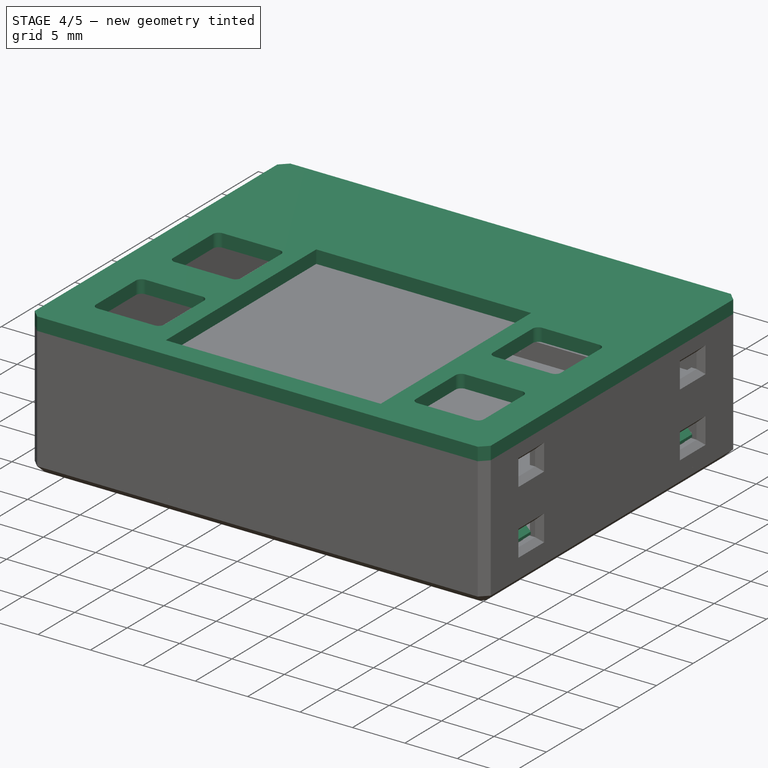
[diagram: stage 4 of 5 — iso view after this stage's code; geometry added in this stage tinted green]
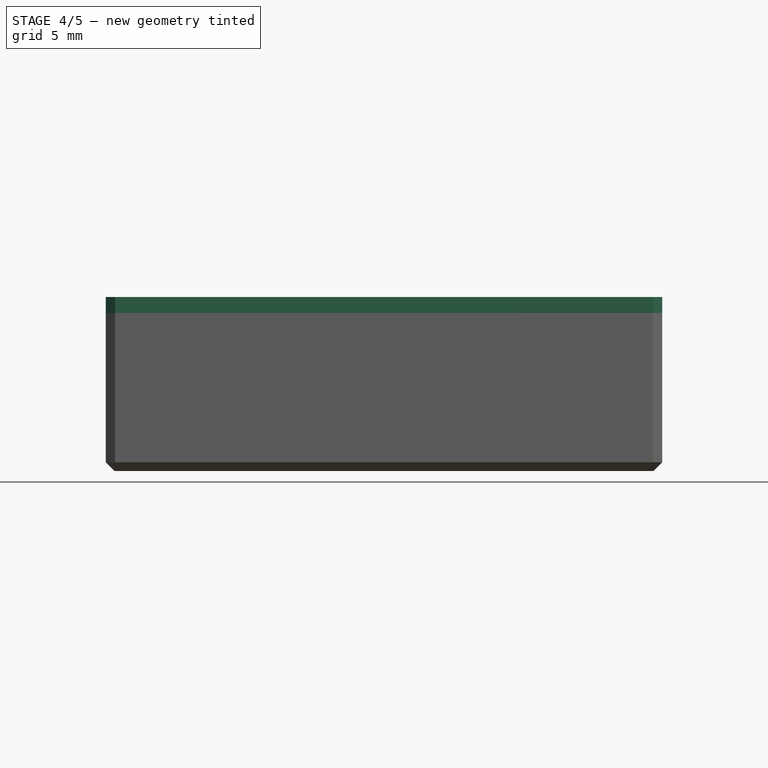
[diagram: stage 4 of 5 — front view after this stage's code; geometry added in this stage tinted green]
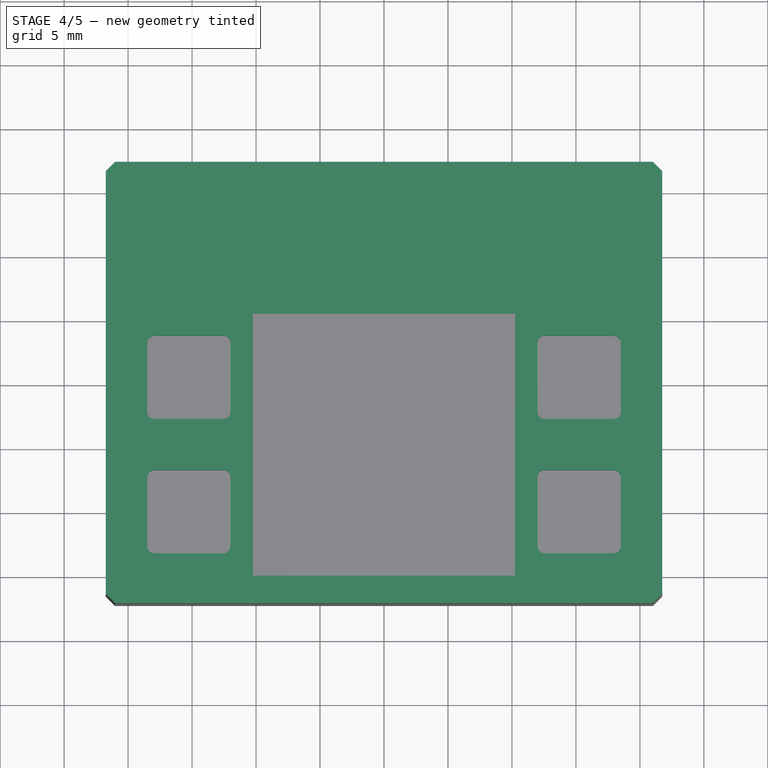
[diagram: stage 4 of 5 — top view after this stage's code; geometry added in this stage tinted green]
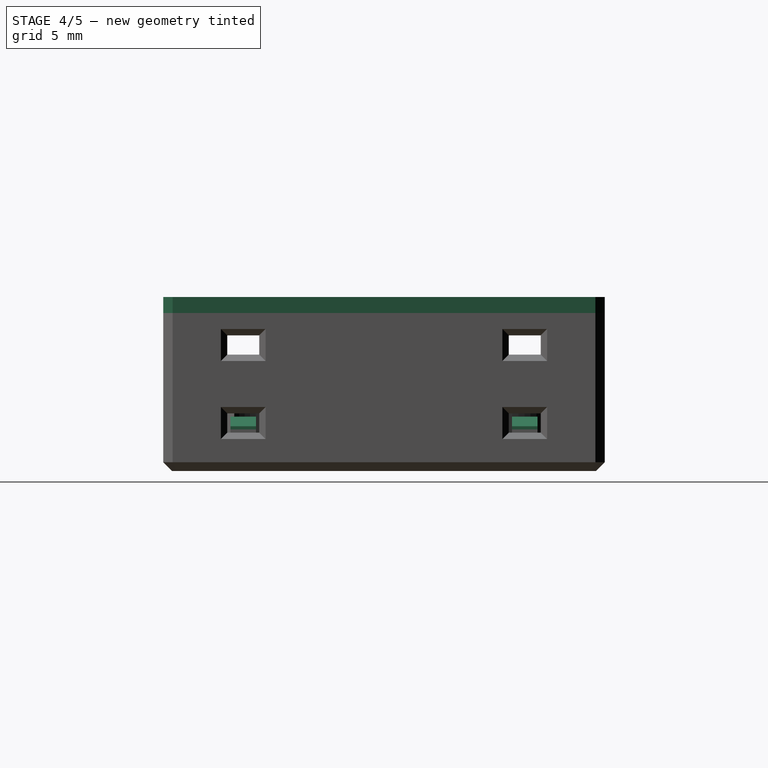
[diagram: stage 4 of 5 — right view after this stage's code; geometry added in this stage tinted green]
FEATURE [Sketcher::SketchObject] Sketch003
  FullyConstrained = true
  MapMode = 5
  Placement = pos=(0,0,7.1) rot=(0,0,1;0rad)
  sketch-geometry (111):
    g0: LineSegment StartX=-20.5 StartY=16 StartZ=0 EndX=20.5 EndY=-16 EndZ=0
    g1: LineSegment StartX=-20.5 StartY=-16 StartZ=0 EndX=20.5 EndY=16 EndZ=0
    g2: LineSegment StartX=-20.5 StartY=16 StartZ=0 EndX=20.5 EndY=16 EndZ=0
    g3: LineSegment StartX=20.5 StartY=16 StartZ=0 EndX=20.5 EndY=-16 EndZ=0
    g4: LineSegment StartX=20.5 StartY=-16 StartZ=0 EndX=-20.5 EndY=-16 EndZ=0
    g5: LineSegment StartX=-20.5 StartY=-16 StartZ=0 EndX=-20.5 EndY=16 EndZ=0
    g6: LineSegment StartX=-21.75 StartY=16.5178 StartZ=0 EndX=-21.0178 EndY=17.25 EndZ=0
    g7: LineSegment StartX=-21.0178 StartY=17.25 StartZ=0 EndX=21.0178 EndY=17.25 EndZ=0
    g8: LineSegment StartX=21.0178 StartY=17.25 StartZ=0 EndX=21.75 EndY=16.5178 EndZ=0
    g9: LineSegment StartX=21.75 StartY=16.5178 StartZ=0 EndX=21.75 EndY=-16.5178 EndZ=0
    g10: LineSegment StartX=21.75 StartY=-16.5178 StartZ=0 EndX=21.0178 EndY=-17.25 EndZ=0
    g11: LineSegment StartX=21.0178 StartY=-17.25 StartZ=0 EndX=-21.0178 EndY=-17.25 EndZ=0
    g12: LineSegment StartX=-21.0178 StartY=-17.25 StartZ=0 EndX=-21.75 EndY=-16.5178 EndZ=0
    g13: LineSegment StartX=-21.75 StartY=-16.5178 StartZ=0 EndX=-21.75 EndY=16.5178 EndZ=0
    g14: LineSegment StartX=-21.75 StartY=16.5178 StartZ=0 EndX=-20.5 EndY=16 EndZ=0
    g15: LineSegment StartX=-21.0178 StartY=17.25 StartZ=0 EndX=-20.5 EndY=16 EndZ=0
    g16: LineSegment StartX=-20.5 StartY=16 StartZ=0 EndX=-19.9822 EndY=17.25 EndZ=0
    g17: LineSegment StartX=-19.9822 StartY=17.25 StartZ=0 EndX=-21.0178 EndY=17.25 EndZ=0
    g18: LineSegment StartX=20.5 StartY=-16 StartZ=0 EndX=21.0178 EndY=-17.25 EndZ=0
    g19: LineSegment StartX=21.75 StartY=-16.5178 StartZ=0 EndX=20.5 EndY=-16 EndZ=0
    g20: LineSegment StartX=20.5 StartY=-16 StartZ=0 EndX=21.75 EndY=-15.4822 EndZ=0
    g21: LineSegment StartX=21.75 StartY=-15.4822 StartZ=0 EndX=21.75 EndY=-16.5178 EndZ=0
    g22: LineSegment StartX=-18.25 StartY=-2.29684 StartZ=0 EndX=-18.25 EndY=3.10919 EndZ=0
    g23: LineSegment StartX=-17.953 StartY=3.40618 StartZ=0 EndX=-12.547 EndY=3.40618 EndZ=0
    g24: LineSegment StartX=-12.25 StartY=3.10919 StartZ=0 EndX=-12.25 EndY=-2.29684 EndZ=0
    g25: LineSegment StartX=-17.953 StartY=-2.59382 StartZ=0 EndX=-12.547 EndY=-2.59382 EndZ=0
    g26: ArcOfCircle CenterX=-17.953 CenterY=3.10919 CenterZ=0 NormalX=0 NormalY=0 NormalZ=1 AngleXU=0 Radius=0.296985 StartAngle=1.5708 EndAngle=3.14159
    g27: ArcOfCircle CenterX=-12.547 CenterY=3.10919 CenterZ=0 NormalX=0 NormalY=0 NormalZ=1 AngleXU=0 Radius=0.296985 StartAngle=1e-16 EndAngle=1.5708
    g28: ArcOfCircle CenterX=-17.953 CenterY=-2.29684 CenterZ=0 NormalX=0 NormalY=0 NormalZ=1 AngleXU=0 Radius=0.296985 StartAngle=3.14159 EndAngle=4.71239
    g29: ArcOfCircle CenterX=-12.547 CenterY=-2.29684 CenterZ=0 NormalX=0 NormalY=0 NormalZ=1 AngleXU=0 Radius=0.296985 StartAngle=4.71239 EndAngle=6.28319
    g30: LineSegment StartX=-18.25 StartY=-12.7968 StartZ=0 EndX=-18.25 EndY=-7.39081 EndZ=0
    g31: LineSegment StartX=-17.953 StartY=-7.09382 StartZ=0 EndX=-12.547 EndY=-7.09382 EndZ=0
    g32: LineSegment StartX=-12.25 StartY=-7.39081 StartZ=0 EndX=-12.25 EndY=-12.7968 EndZ=0
    g33: LineSegment StartX=-17.953 StartY=-13.0938 StartZ=0 EndX=-12.547 EndY=-13.0938 EndZ=0
    g34: ArcOfCircle CenterX=-17.953 CenterY=-7.39081 CenterZ=0 NormalX=0 NormalY=0 NormalZ=1 AngleXU=0 Radius=0.296985 StartAngle=1.5708 EndAngle=3.14159
    g35: ArcOfCircle CenterX=-12.547 CenterY=-7.39081 CenterZ=0 NormalX=0 NormalY=0 NormalZ=1 AngleXU=0 Radius=0.296985 StartAngle=-9e-16 EndAngle=1.5708
    g36: ArcOfCircle CenterX=-17.953 CenterY=-12.7968 CenterZ=0 NormalX=0 NormalY=0 NormalZ=1 AngleXU=0 Radius=0.296985 StartAngle=3.14159 EndAngle=4.71239
    g37: ArcOfCircle CenterX=-12.547 CenterY=-12.7968 CenterZ=0 NormalX=0 NormalY=0 NormalZ=1 AngleXU=0 Radius=0.296985 StartAngle=4.71239 EndAngle=6.28319
    g38: LineSegment StartX=12.25 StartY=-2.29684 StartZ=0 EndX=12.25 EndY=3.10919 EndZ=0
    g39: LineSegment StartX=12.547 StartY=3.40618 StartZ=0 EndX=17.953 EndY=3.40618 EndZ=0
    g40: LineSegment StartX=18.25 StartY=3.10919 StartZ=0 EndX=18.25 EndY=-2.29684 EndZ=0
    g41: LineSegment StartX=12.547 StartY=-2.59382 StartZ=0 EndX=17.953 EndY=-2.59382 EndZ=0
    g42: ArcOfCircle CenterX=12.547 CenterY=3.10919 CenterZ=0 NormalX=0 NormalY=0 NormalZ=1 AngleXU=0 Radius=0.296985 StartAngle=1.5708 EndAngle=3.14159
    g43: ArcOfCircle CenterX=17.953 CenterY=3.10919 CenterZ=0 NormalX=0 NormalY=0 NormalZ=1 AngleXU=0 Radius=0.296985 StartAngle=1e-16 EndAngle=1.5708
    g44: ArcOfCircle CenterX=12.547 CenterY=-2.29684 CenterZ=0 NormalX=0 NormalY=0 NormalZ=1 AngleXU=0 Radius=0.296985 StartAngle=3.14159 EndAngle=4.71239
    g45: ArcOfCircle CenterX=17.953 CenterY=-2.29684 CenterZ=0 NormalX=0 NormalY=0 NormalZ=1 AngleXU=0 Radius=0.296985 StartAngle=4.71239 EndAngle=6.28319
    g46: LineSegment StartX=12.25 StartY=-12.7968 StartZ=0 EndX=12.25 EndY=-7.39081 EndZ=0
    g47: LineSegment StartX=12.547 StartY=-7.09382 StartZ=0 EndX=17.953 EndY=-7.09382 EndZ=0
    g48: LineSegment StartX=18.25 StartY=-7.39081 StartZ=0 EndX=18.25 EndY=-12.7968 EndZ=0
    g49: LineSegment StartX=12.547 StartY=-13.0938 StartZ=0 EndX=17.953 EndY=-13.0938 EndZ=0
    g50: ArcOfCircle CenterX=12.547 CenterY=-7.39081 CenterZ=0 NormalX=0 NormalY=0 NormalZ=1 AngleXU=0 Radius=0.296985 StartAngle=1.5708 EndAngle=3.14159
    g51: ArcOfCircle CenterX=17.953 CenterY=-7.39081 CenterZ=0 NormalX=0 NormalY=0 NormalZ=1 AngleXU=0 Radius=0.296985 StartAngle=-9e-16 EndAngle=1.5708
    g52: ArcOfCircle CenterX=12.547 CenterY=-12.7968 CenterZ=0 NormalX=0 NormalY=0 NormalZ=1 AngleXU=0 Radius=0.296985 StartAngle=3.14159 EndAngle=4.71239
    g53: ArcOfCircle CenterX=17.953 CenterY=-12.7968 CenterZ=0 NormalX=0 NormalY=0 NormalZ=1 AngleXU=0 Radius=0.296985 StartAngle=4.71239 EndAngle=6.28319
    g54: LineSegment StartX=-12.25 StartY=-7.39081 StartZ=0 EndX=12.25 EndY=-7.39081 EndZ=0
    g55: LineSegment StartX=-12.547 StartY=-7.09382 StartZ=0 EndX=-12.547 EndY=-2.59382 EndZ=0
    g56: LineSegment StartX=12.547 StartY=-7.09382 StartZ=0 EndX=12.547 EndY=-2.59382 EndZ=0
    g57: LineSegment StartX=-12.25 StartY=-2.29684 StartZ=0 EndX=12.25 EndY=-2.29684 EndZ=0
    g58: LineSegment StartX=12.25 StartY=-2.29684 StartZ=0 EndX=-12.25 EndY=-7.39081 EndZ=0
    g59: LineSegment StartX=-12.25 StartY=-2.29684 StartZ=0 EndX=12.25 EndY=-7.39081 EndZ=0
    g60: GeomPoint X=0 Y=-4.84382 Z=0
    g61: ArcOfCircle CenterX=-17.953 CenterY=3.10919 CenterZ=0 NormalX=0 NormalY=0 NormalZ=1 AngleXU=0 Radius=0.546985 StartAngle=1.5708 EndAngle=3.14159
    g62: ArcOfCircle CenterX=-17.953 CenterY=-2.29684 CenterZ=0 NormalX=0 NormalY=0 NormalZ=1 AngleXU=0 Radius=0.546985 StartAngle=3.14159 EndAngle=4.71239
    g63: ArcOfCircle CenterX=-12.547 CenterY=-2.29684 CenterZ=0 NormalX=0 NormalY=0 NormalZ=1 AngleXU=0 Radius=0.546985 StartAngle=4.71239 EndAngle=6.28319
    g64: ArcOfCircle CenterX=-12.547 CenterY=3.10919 CenterZ=0 NormalX=0 NormalY=0 NormalZ=1 AngleXU=0 Radius=0.546985 StartAngle=4e-16 EndAngle=1.5708
    g65: LineSegment StartX=-17.953 StartY=3.65618 StartZ=0 EndX=-12.547 EndY=3.65618 EndZ=0
    g66: LineSegment StartX=-18.5 StartY=3.10919 StartZ=0 EndX=-18.5 EndY=-2.29684 EndZ=0
    g67: LineSegment StartX=-17.953 StartY=-2.84382 StartZ=0 EndX=-12.547 EndY=-2.84382 EndZ=0
    g68: LineSegment StartX=-12 StartY=-2.29684 StartZ=0 EndX=-12 EndY=3.10919 EndZ=0
    g69: LineSegment StartX=-17.953 StartY=3.40618 StartZ=0 EndX=-17.953 EndY=3.65618 EndZ=0
    g70: LineSegment StartX=-17.953 StartY=-13.3438 StartZ=0 EndX=-12.547 EndY=-13.3438 EndZ=0
    g71: ArcOfCircle CenterX=-17.953 CenterY=-12.7968 CenterZ=0 NormalX=0 NormalY=0 NormalZ=1 AngleXU=0 Radius=0.546985 StartAngle=3.14159 EndAngle=4.71239
    g72: LineSegment StartX=-18.5 StartY=-7.39081 StartZ=0 EndX=-18.5 EndY=-12.7968 EndZ=0
    g73: ArcOfCircle CenterX=-12.547 CenterY=-12.7968 CenterZ=0 NormalX=0 NormalY=0 NormalZ=1 AngleXU=0 Radius=0.546985 StartAngle=4.71239 EndAngle=6.28319
    g74: LineSegment StartX=-12 StartY=-12.7968 StartZ=0 EndX=-12 EndY=-7.39081 EndZ=0
    g75: ArcOfCircle CenterX=-12.547 CenterY=-7.39081 CenterZ=0 NormalX=0 NormalY=0 NormalZ=1 AngleXU=0 Radius=0.546985 StartAngle=2e-16 EndAngle=1.5708
    g76: LineSegment StartX=-17.953 StartY=-6.84382 StartZ=0 EndX=-12.547 EndY=-6.84382 EndZ=0
    g77: ArcOfCircle CenterX=-17.953 CenterY=-7.39081 CenterZ=0 NormalX=0 NormalY=0 NormalZ=1 AngleXU=0 Radius=0.546985 StartAngle=1.5708 EndAngle=3.14159
    g78: LineSegment StartX=-17.953 StartY=-7.09382 StartZ=0 EndX=-17.953 EndY=-6.84382 EndZ=0
    g79: ArcOfCircle CenterX=12.547 CenterY=-7.39081 CenterZ=0 NormalX=0 NormalY=0 NormalZ=1 AngleXU=0 Radius=0.546985 StartAngle=1.5708 EndAngle=3.14159
    g80: LineSegment StartX=12.547 StartY=-6.84382 StartZ=0 EndX=17.953 EndY=-6.84382 EndZ=0
    g81: LineSegment StartX=12.547 StartY=-7.09382 StartZ=0 EndX=12.547 EndY=-6.84382 EndZ=0
    g82: LineSegment StartX=12 StartY=-7.39081 StartZ=0 EndX=12 EndY=-12.7968 EndZ=0
    g83: ArcOfCircle CenterX=17.953 CenterY=-7.39081 CenterZ=0 NormalX=0 NormalY=0 NormalZ=1 AngleXU=0 Radius=0.546985 StartAngle=-9e-16 EndAngle=1.5708
    g84: LineSegment StartX=18.5 StartY=-12.7968 StartZ=0 EndX=18.5 EndY=-7.39081 EndZ=0
    g85: ArcOfCircle CenterX=12.547 CenterY=-12.7968 CenterZ=0 NormalX=0 NormalY=0 NormalZ=1 AngleXU=0 Radius=0.546985 StartAngle=3.14159 EndAngle=4.71239
    g86: LineSegment StartX=12.547 StartY=-13.3438 StartZ=0 EndX=17.953 EndY=-13.3438 EndZ=0
    g87: ArcOfCircle CenterX=17.953 CenterY=-12.7968 CenterZ=0 NormalX=0 NormalY=0 NormalZ=1 AngleXU=0 Radius=0.546985 StartAngle=4.71239 EndAngle=6.28319
    g88: LineSegment StartX=12.547 StartY=3.65618 StartZ=0 EndX=17.953 EndY=3.65618 EndZ=0
    g89: LineSegment StartX=12.547 StartY=3.40618 StartZ=0 EndX=12.547 EndY=3.65618 EndZ=0
    g90: ArcOfCircle CenterX=12.547 CenterY=3.10919 CenterZ=0 NormalX=0 NormalY=0 NormalZ=1 AngleXU=0 Radius=0.546985 StartAngle=1.5708 EndAngle=3.14159
    g91: LineSegment StartX=12 StartY=3.10919 StartZ=0 EndX=12 EndY=-2.29684 EndZ=0
    g92: ArcOfCircle CenterX=17.953 CenterY=3.10919 CenterZ=0 NormalX=0 NormalY=0 NormalZ=1 AngleXU=0 Radius=0.546985 StartAngle=-1.146e-13 EndAngle=1.5708
    g93: LineSegment StartX=18.5 StartY=-2.29684 StartZ=0 EndX=18.5 EndY=3.10919 EndZ=0
    g94: ArcOfCircle CenterX=12.547 CenterY=-2.29684 CenterZ=0 NormalX=0 NormalY=0 NormalZ=1 AngleXU=0 Radius=0.546985 StartAngle=3.14159 EndAngle=4.71239
    g95: LineSegment StartX=12.547 StartY=-2.84382 StartZ=0 EndX=17.953 EndY=-2.84382 EndZ=0
    g96: ArcOfCircle CenterX=17.953 CenterY=-2.29684 CenterZ=0 NormalX=0 NormalY=0 NormalZ=1 AngleXU=0 Radius=0.546985 StartAngle=4.71239 EndAngle=6.28319
    g97: LineSegment StartX=-10 StartY=5.15618 StartZ=0 EndX=10 EndY=5.15618 EndZ=0
    g98: LineSegment StartX=10 StartY=5.15618 StartZ=0 EndX=10 EndY=-14.8438 EndZ=0
    g99: LineSegment StartX=10 StartY=-14.8438 StartZ=0 EndX=-10 EndY=-14.8438 EndZ=0
    g100: LineSegment StartX=-10 StartY=-14.8438 StartZ=0 EndX=-10 EndY=5.15618 EndZ=0
    g101: LineSegment StartX=-10 StartY=5.15618 StartZ=0 EndX=10 EndY=-14.8438 EndZ=0
    g102: LineSegment StartX=-10 StartY=-14.8438 StartZ=0 EndX=10 EndY=5.15618 EndZ=0
    g103: LineSegment StartX=-10.25 StartY=5.40618 StartZ=0 EndX=10.25 EndY=5.40618 EndZ=0
    g104: LineSegment StartX=10.25 StartY=5.40618 StartZ=0 EndX=10.25 EndY=-15.0938 EndZ=0
    g105: LineSegment StartX=10.25 StartY=-15.0938 StartZ=0 EndX=-10.25 EndY=-15.0938 EndZ=0
    g106: LineSegment StartX=-10.25 StartY=-15.0938 StartZ=0 EndX=-10.25 EndY=5.40618 EndZ=0
    g107: LineSegment StartX=-10 StartY=5.15618 StartZ=0 EndX=-10 EndY=5.40618 EndZ=0
    g108: LineSegment StartX=-10 StartY=5.15618 StartZ=0 EndX=-10.25 EndY=5.15618 EndZ=0
    g109: LineSegment StartX=10 StartY=-14.8438 StartZ=0 EndX=10.25 EndY=-14.8438 EndZ=0
    g110: LineSegment StartX=10 StartY=-14.8438 StartZ=0 EndX=10 EndY=-15.0938 EndZ=0
  constraints (266):
    c: Coincident(g2,g3)
    c: Coincident(g3,g4)
    c: Coincident(g4,g5)
    c: Coincident(g5,g2)
    c: Horizontal(g2)
    c: Horizontal(g4)
    c: Vertical(g3)
    c: Vertical(g5)
    c: Coincident(g1,g4)
    c: Coincident(g0,g2)
    c: Coincident(g1,g2)
    c: Coincident(g0,g3)
    c: PointOnObject(g-1,g0)
    c: PointOnObject(g-1,g1)
    c: DistanceX(g4,g4) = 41
    c: DistanceY(g5,g5) = 32
    c: Coincident(g6,g7)
    c: Horizontal(g7)
    c: Coincident(g7,g8)
    c: Coincident(g8,g9)
    c: Vertical(g9)
    c: Coincident(g9,g10)
    c: Coincident(g10,g11)
    c: Horizontal(g11)
    c: Coincident(g11,g12)
    c: Coincident(g12,g13)
    c: Coincident(g13,g6)
    c: Vertical(g13)
    c: Equal(g6,g8)
    c: Equal(g8,g10)
    c: Equal(g10,g12)
    c: Equal(g7,g11)
    c: Equal(g13,g9)
    c: Perpendicular(g8,g6)
    c: Coincident(g14,g6)
    c: Coincident(g14,g0)
    c: Coincident(g15,g6)
    c: Coincident(g15,g0)
    c: Coincident(g16,g0)
    c: Coincident(g17,g16)
    c: Horizontal(g17)
    c: Equal(g17,g6)
    c: Coincident(g6,g17)
    c: Equal(g14,g15)
    c: Equal(g15,g16)
    c: DistanceY(g0,g6) = 1.25
    c: Coincident(g18,g0)
    c: Coincident(g18,g10)
    c: Coincident(g19,g9)
    c: Coincident(g19,g0)
    c: Coincident(g21,g20)
    c: Vertical(g21)
    c: Equal(g21,g10)
    c: Coincident(g9,g21)
    c: Equal(g20,g19)
    c: Equal(g19,g18)
    c: Coincident(g20,g0)
    c: Perpendicular(g16,g14)
    c: Vertical(g22)
    c: Horizontal(g23)
    c: Vertical(g24)
    c: Horizontal(g25)
    c: Tangent(g24,g29) = 1.5708
    c: Tangent(g25,g29) = -1.5708
    c: Tangent(g25,g28) = -1.5708
    c: Tangent(g22,g28) = 1.5708
    c: Tangent(g22,g26) = 1.5708
    c: Tangent(g23,g26) = 1.5708
    c: Tangent(g23,g27) = 1.5708
    c: Tangent(g24,g27) = 1.5708
    c: Equal(g22,g24)
    c: Equal(g25,g23)
    c: Equal(g22,g23)
    c: Equal(g26,g27)
    c: DistanceX(g22,g24) = 6
    c: Distance(g22,g23) = 0.42
    c: Vertical(g30)
    c: Horizontal(g31)
    c: Vertical(g32)
    c: Horizontal(g33)
    c: Tangent(g32,g37) = 1.5708
    c: Tangent(g33,g37) = -1.5708
    c: Tangent(g33,g36) = -1.5708
    c: Tangent(g30,g36) = 1.5708
    c: Tangent(g30,g34) = 1.5708
    c: Tangent(g31,g34) = 1.5708
    c: Tangent(g31,g35) = 1.5708
    c: Tangent(g32,g35) = 1.5708
    c: Equal(g30,g32)
    c: Equal(g33,g31)
    c: Equal(g30,g31)
    c: Equal(g34,g35)
    c: DistanceX(g30,g32) = 6
    c: Distance(g30,g31) = 0.42
    c: Vertical(g38)
    c: Horizontal(g39)
    c: Vertical(g40)
    c: Horizontal(g41)
    c: Tangent(g40,g45) = 1.5708
    c: Tangent(g41,g45) = -1.5708
    c: Tangent(g41,g44) = -1.5708
    c: Tangent(g38,g44) = 1.5708
    c: Tangent(g38,g42) = 1.5708
    c: Tangent(g39,g42) = 1.5708
    c: Tangent(g39,g43) = 1.5708
    c: Tangent(g40,g43) = 1.5708
    c: Equal(g38,g40)
    c: Equal(g41,g39)
    c: Equal(g38,g39)
    c: Equal(g42,g43)
    c: DistanceX(g38,g40) = 6
    c: Distance(g38,g39) = 0.42
    c: Vertical(g46)
    c: Horizontal(g47)
    c: Vertical(g48)
    c: Horizontal(g49)
    c: Tangent(g48,g53) = 1.5708
    c: Tangent(g49,g53) = -1.5708
    c: Tangent(g49,g52) = -1.5708
    c: Tangent(g46,g52) = 1.5708
    c: Tangent(g46,g50) = 1.5708
    c: Tangent(g47,g50) = 1.5708
    c: Tangent(g47,g51) = 1.5708
    c: Tangent(g48,g51) = 1.5708
    c: Equal(g46,g48)
    c: Equal(g49,g47)
    c: Equal(g46,g47)
    c: Equal(g50,g51)
    c: DistanceX(g46,g48) = 6
    c: Distance(g46,g47) = 0.42
    c: Coincident(g54,g32)
    c: Coincident(g54,g46)
    c: Horizontal(g54)
    c: Coincident(g55,g31)
    c: Coincident(g55,g25)
    c: Vertical(g55)
    c: Coincident(g56,g47)
    c: Coincident(g56,g41)
    c: Vertical(g56)
    c: Coincident(g57,g24)
    c: Coincident(g57,g38)
    c: Horizontal(g57)
    c: Coincident(g58,g38)
    c: Coincident(g58,g32)
    c: Coincident(g59,g24)
    c: Coincident(g59,g46)
    c: PointOnObject(g60,g58)
    c: PointOnObject(g60,g59)
    c: PointOnObject(g60,g-2)
    c: DistanceY(g55,g55) = 4.5
    c: DistanceX(g57,g57) = 24.5
    c: Coincident(g61,g26)
    c: Coincident(g62,g28)
    c: Coincident(g63,g29)
    c: Coincident(g64,g27)
    c: Coincident(g65,g61)
    c: Horizontal(g65)
    c: Vertical(g66)
    c: Horizontal(g67)
    c: Vertical(g68)
    c: Tangent(g65,g64) = 1.5708
    c: Tangent(g68,g64) = -1.5708
    c: Tangent(g68,g63) = -1.5708
    c: Tangent(g67,g63) = -1.5708
    c: Tangent(g67,g62) = -1.5708
    c: Tangent(g66,g62) = -1.5708
    c: Tangent(g66,g61) = -1.5708
    c: Coincident(g69,g23)
    c: Coincident(g69,g61)
    c: DistanceY(g69,g69) = 0.25
    c: Coincident(g76,g77)
    c: Horizontal(g76)
    c: Vertical(g72)
    c: Horizontal(g70)
    c: Vertical(g74)
    c: Tangent(g76,g75) = 1.5708
    c: Tangent(g74,g75) = -1.5708
    c: Tangent(g74,g73) = -1.5708
    c: Tangent(g70,g73) = -1.5708
    c: Tangent(g70,g71) = -1.5708
    c: Tangent(g72,g71) = -1.5708
    c: Tangent(g72,g77) = -1.5708
    c: Coincident(g78,g77)
    c: Equal(g69,g78) = 0.25
    c: Coincident(g31,g78)
    c: Coincident(g34,g77)
    c: Coincident(g35,g75)
    c: Coincident(g37,g73)
    c: Coincident(g36,g71)
    c: Horizontal(g88)
    c: Vertical(g91)
    c: Horizontal(g95)
    c: Tangent(g88,g92) = 1.5708
    c: Tangent(g93,g92) = -1.5708
    c: Tangent(g93,g96) = -1.5708
    c: Tangent(g95,g96) = -1.5708
    c: Tangent(g95,g94) = -1.5708
    c: Tangent(g91,g94) = -1.5708
    c: Tangent(g91,g90) = -1.5708
    c: Coincident(g89,g90)
    c: Equal(g69,g89) = 0.25
    c: Horizontal(g80)
    c: Vertical(g82)
    c: Horizontal(g86)
    c: Tangent(g80,g83) = 1.5708
    c: Tangent(g84,g83) = -1.5708
    c: Tangent(g84,g87) = -1.5708
    c: Tangent(g86,g87) = -1.5708
    c: Tangent(g86,g85) = -1.5708
    c: Tangent(g82,g85) = -1.5708
    c: Tangent(g82,g79) = -1.5708
    c: Coincident(g81,g79)
    c: Equal(g89,g81) = 0.25
    c: Coincident(g45,g96)
    c: Coincident(g44,g94)
    c: Coincident(g42,g90)
    c: Coincident(g92,g43)
    c: Coincident(g89,g39)
    c: Coincident(g81,g47)
    c: Coincident(g50,g79)
    c: Coincident(g51,g83)
    c: Coincident(g53,g87)
    c: Coincident(g52,g85)
    c: Distance(g1,g70) = 3.68
    c: Coincident(g97,g98)
    c: Coincident(g98,g99)
    c: Coincident(g99,g100)
    c: Coincident(g100,g97)
    c: Horizontal(g97)
    c: Horizontal(g99)
    c: Vertical(g98)
    c: Vertical(g100)
    c: Coincident(g101,g97)
    c: Coincident(g101,g98)
    c: Coincident(g102,g99)
    c: Coincident(g102,g97)
    c: PointOnObject(g60,g101)
    c: PointOnObject(g60,g102)
    c: Equal(g100,g97)
    c: DistanceX(g97,g97) = 20
    c: Coincident(g103,g104)
    c: Coincident(g104,g105)
    c: Coincident(g105,g106)
    c: Coincident(g106,g103)
    c: Horizontal(g103)
    c: Horizontal(g105)
    c: Vertical(g104)
    c: Vertical(g106)
    c: Coincident(g107,g97)
    c: PointOnObject(g107,g103)
    c: Vertical(g107)
    c: Coincident(g108,g97)
    c: PointOnObject(g108,g106)
    c: Horizontal(g108)
    c: Coincident(g109,g98)
    c: PointOnObject(g109,g104)
    c: Horizontal(g109)
    c: Coincident(g110,g98)
    c: PointOnObject(g110,g105)
    c: Vertical(g110)
    c: Equal(g110,g109)
    c: Equal(g109,g108)
    c: Equal(g108,g107)
    c: DistanceY(g107,g107) = 0.25
    c: Tangent(g80,g79) = 1.5708
    c: Tangent(g88,g90) = 1.5708
FEATURE [PartDesign::Pad] Pad002
  Direction = (1,1,1)
  Length = 1.25
  Length2 = 100
  Placement = pos=(0,0,7.1) rot=(0,0,1;0rad)
  Profile = -> Sketch003
  Type = 0
FEATURE [Sketcher::SketchObject] Sketch011
  ExternalGeometry = -> [Pad008]
  FullyConstrained = true
  MapMode = 5
  Placement = pos=(0,10,0) rot=(1,0,0;1.5708rad)
  Support = -> [Pad008]
  sketch-geometry (8):
    g0: LineSegment StartX=-20.25 StartY=-1 StartZ=0 EndX=-20.25 EndY=-2 EndZ=0
    g1: LineSegment StartX=-20.25 StartY=-2 StartZ=0 EndX=-21 EndY=-2 EndZ=0
    g2: LineSegment StartX=20.25 StartY=-1 StartZ=0 EndX=20.25 EndY=-2 EndZ=0
    g3: LineSegment StartX=20.25 StartY=-2 StartZ=0 EndX=21 EndY=-2 EndZ=0
    g4: LineSegment StartX=-20.25 StartY=-1 StartZ=0 EndX=-21 EndY=-1.75 EndZ=0
    g5: LineSegment StartX=-21 StartY=-1.75 StartZ=0 EndX=-21 EndY=-2 EndZ=0
    g6: LineSegment StartX=21 StartY=-2 StartZ=0 EndX=21 EndY=-1.75 EndZ=0
    g7: LineSegment StartX=21 StartY=-1.75 StartZ=0 EndX=20.25 EndY=-1 EndZ=0
  constraints (22):
    c: Coincident(g0,g-3)
    c: PointOnObject(g0,g-3)
    c: Coincident(g1,g0)
    c: Horizontal(g1)
    c: DistanceX(g1,g1) = 0.75
    c: DistanceY(g0,g0) = 1
    c: Coincident(g3,g2)
    c: Horizontal(g3)
    c: DistanceY(g2,g2) = 1
    c: DistanceX(g3,g3) = 0.75
    c: Coincident(g5,g4)
    c: Coincident(g5,g1)
    c: Vertical(g5)
    c: Coincident(g6,g3)
    c: Vertical(g6)
    c: Coincident(g7,g6)
    c: Vertical(g2)
    c: Coincident(g2,g-4)
    c: Coincident(g0,g4)
    c: Angle(g4,g0) = 0.785398
    c: Coincident(g2,g7)
    c: Angle(g2,g7) = 0.785398
FEATURE [PartDesign::Pad] Pad009
  BaseFeature = -> Pad008
  Direction = (1,1,1)
  Length = 2
  Length2 = 100
  Profile = -> Sketch011
  Reversed = true
  Type = 0
FEATURE [Sketcher::SketchObject] Sketch012
  ExternalGeometry = -> [Pad009]
  FullyConstrained = true
  MapMode = 5
  Placement = pos=(0,-10,0) rot=(0,0.707107,0.707107;3.14159rad)
  Support = -> [Pad009]
  sketch-geometry (10):
    g0: LineSegment StartX=21 StartY=-1.75 StartZ=0 EndX=21 EndY=-2 EndZ=0
    g1: LineSegment StartX=20.25 StartY=-1 StartZ=0 EndX=21 EndY=-1.75 EndZ=0
    g2: LineSegment StartX=21 StartY=-1.75 StartZ=0 EndX=21 EndY=-1.75 EndZ=0
    g3: LineSegment StartX=21 StartY=-1.75 StartZ=0 EndX=21 EndY=-1.75 EndZ=0
    g4: LineSegment StartX=-20.25 StartY=-1 StartZ=0 EndX=-21 EndY=-1.75 EndZ=0
    g5: LineSegment StartX=-21 StartY=-1.75 StartZ=0 EndX=-21 EndY=-2 EndZ=0
    g6: LineSegment StartX=-21 StartY=-2 StartZ=0 EndX=-20.25 EndY=-2 EndZ=0
    g7: LineSegment StartX=-20.25 StartY=-2 StartZ=0 EndX=-20.25 EndY=-1 EndZ=0
    g8: LineSegment StartX=21 StartY=-2 StartZ=0 EndX=20.25 EndY=-2 EndZ=0
    g9: LineSegment StartX=20.25 StartY=-2 StartZ=0 EndX=20.25 EndY=-1 EndZ=0
  constraints (22):
    c: Coincident(g-5,g0)
    c: Coincident(g0,g-5)
    c: Coincident(g1,g-6)
    c: Coincident(g1,g2)
    c: Horizontal(g2)
    c: Coincident(g2,g3)
    c: Coincident(g3,g0)
    c: Vertical(g3)
    c: Coincident(g4,g-4)
    c: Coincident(g4,g5)
    c: Coincident(g5,g-4)
    c: Coincident(g5,g6)
    c: Horizontal(g6)
    c: Coincident(g6,g7)
    c: Vertical(g7)
    c: Coincident(g8,g0)
    c: Coincident(g8,g-7)
    c: Coincident(g9,g8)
    c: Coincident(g9,g1)
    c: Coincident(g1,g-6)
    c: Coincident(g4,g7)
    c: Coincident(g4,g-3)
FEATURE [PartDesign::Pad] Pad010
  BaseFeature = -> Pad009
  Direction = (1,1,1)
  Length = 2
  Length2 = 100
  Profile = -> Sketch012
  Reversed = true
  Type = 0
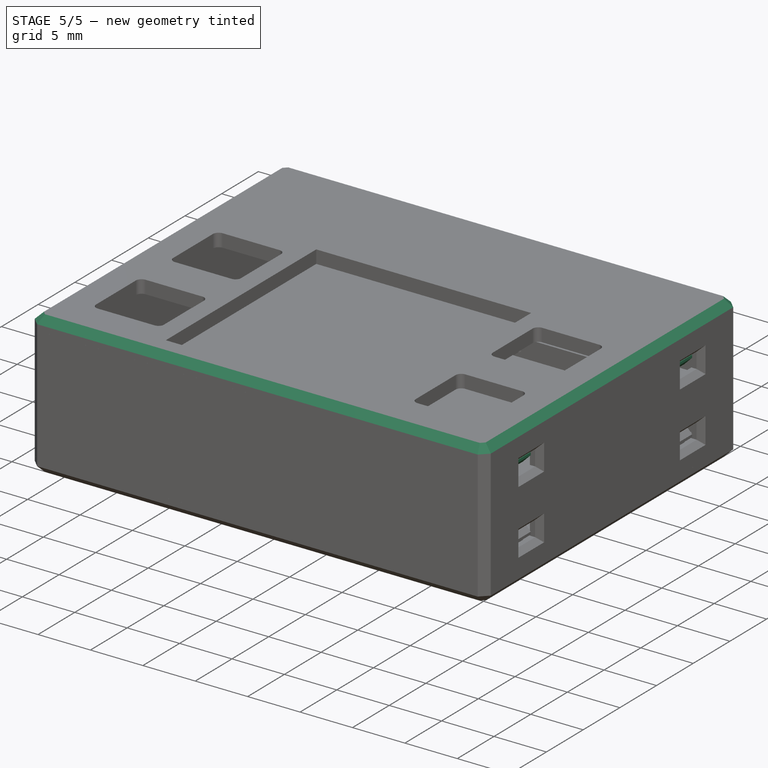
[diagram: stage 5 of 5 — iso view after this stage's code; geometry added in this stage tinted green]
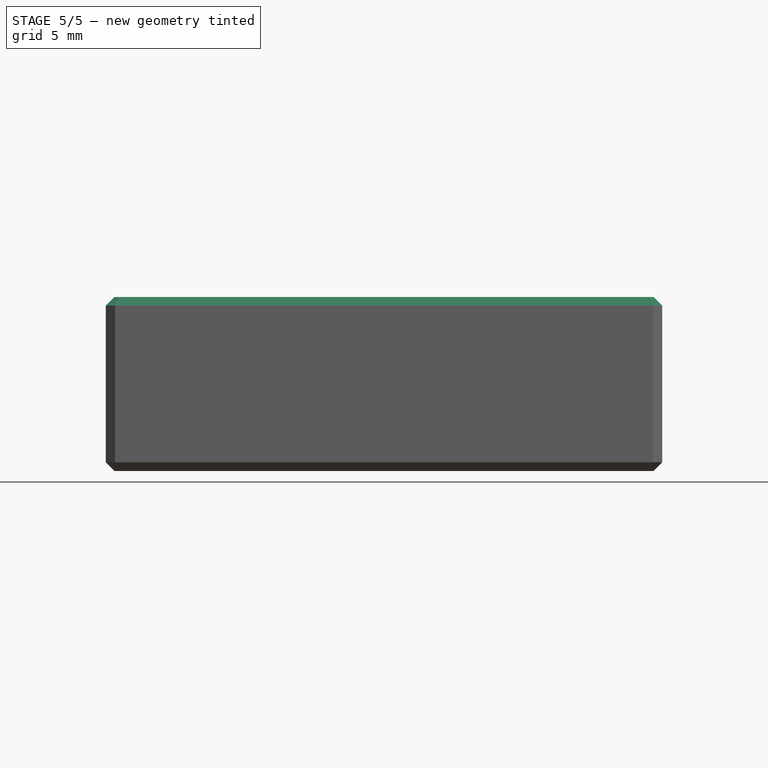
[diagram: stage 5 of 5 — front view after this stage's code; geometry added in this stage tinted green]
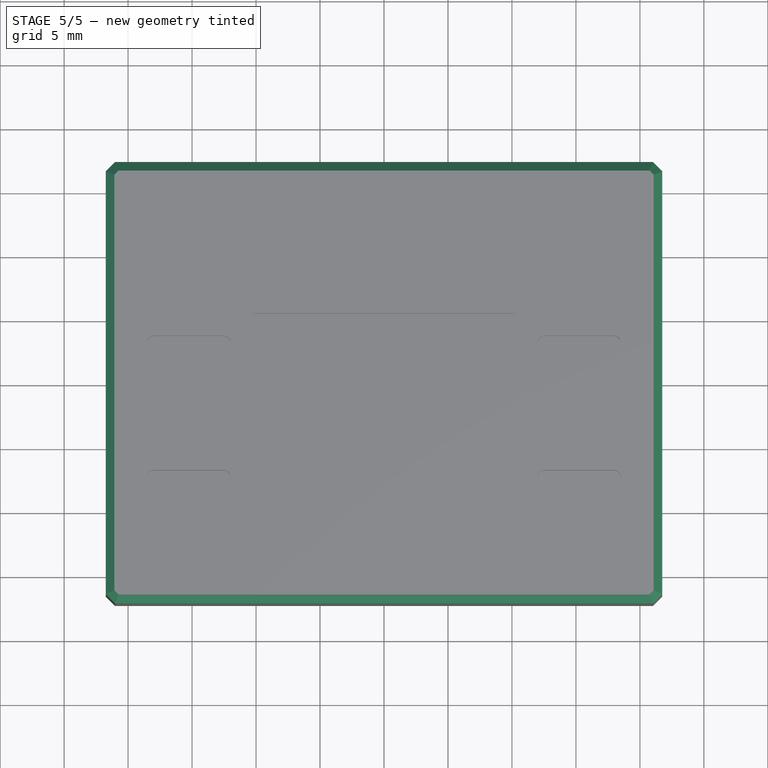
[diagram: stage 5 of 5 — top view after this stage's code; geometry added in this stage tinted green]
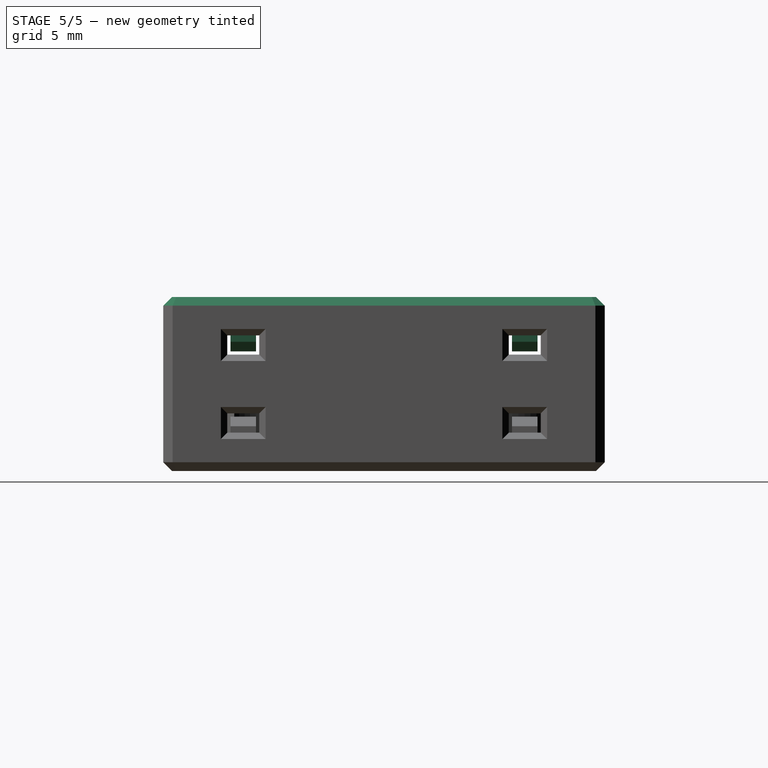
[diagram: stage 5 of 5 — right view after this stage's code; geometry added in this stage tinted green]
FEATURE [PartDesign::Chamfer] Chamfer
  Angle = 45
  Base = -> Pad002 [Edge24,Edge19,Edge22,Edge4,Edge7,Edge10,Edge13,Edge16]
  BaseFeature = -> Pad002
  ChamferType = 0
  FlipDirection = false
  Placement = pos=(0,0,7.1) rot=(0,0,1;0rad)
  Size = 0.6765
  Size2 = 1
  SupportTransform = false
FEATURE [Sketcher::SketchObject] Sketch004
  ExternalGeometry = -> [Chamfer]
  FullyConstrained = true
  MapMode = 5
  Placement = pos=(0,0,7.1) rot=(1,0,0;3.14159rad)
  Support = -> [Chamfer]
  sketch-geometry (29):
    g0: LineSegment StartX=-20.25 StartY=12 StartZ=0 EndX=-19.75 EndY=12 EndZ=0
    g1: LineSegment StartX=-19.75 StartY=12 StartZ=0 EndX=-19.75 EndY=10 EndZ=0
    g2: LineSegment StartX=-19.75 StartY=10 StartZ=0 EndX=-20.25 EndY=10 EndZ=0
    g3: LineSegment StartX=-20.25 StartY=10 StartZ=0 EndX=-20.25 EndY=12 EndZ=0
    g4: LineSegment StartX=-20.25 StartY=-10 StartZ=0 EndX=-19.75 EndY=-10 EndZ=0
    g5: LineSegment StartX=-19.75 StartY=-10 StartZ=0 EndX=-19.75 EndY=-12 EndZ=0
    g6: LineSegment StartX=-19.75 StartY=-12 StartZ=0 EndX=-20.25 EndY=-12 EndZ=0
    g7: LineSegment StartX=-20.25 StartY=-12 StartZ=0 EndX=-20.25 EndY=-10 EndZ=0
    g8: LineSegment StartX=19.75 StartY=-10 StartZ=0 EndX=20.25 EndY=-10 EndZ=0
    g9: LineSegment StartX=20.25 StartY=-10 StartZ=0 EndX=20.25 EndY=-12 EndZ=0
    g10: LineSegment StartX=20.25 StartY=-12 StartZ=0 EndX=19.75 EndY=-12 EndZ=0
    g11: LineSegment StartX=19.75 StartY=-12 StartZ=0 EndX=19.75 EndY=-10 EndZ=0
    g12: LineSegment StartX=19.75 StartY=12 StartZ=0 EndX=20.25 EndY=12 EndZ=0
    g13: LineSegment StartX=20.25 StartY=12 StartZ=0 EndX=20.25 EndY=10 EndZ=0
    g14: LineSegment StartX=20.25 StartY=10 StartZ=0 EndX=19.75 EndY=10 EndZ=0
    g15: LineSegment StartX=19.75 StartY=10 StartZ=0 EndX=19.75 EndY=12 EndZ=0
    g16: LineSegment StartX=-19.75 StartY=10 StartZ=0 EndX=19.75 EndY=10 EndZ=0
    g17: LineSegment StartX=-19.75 StartY=12 StartZ=0 EndX=19.75 EndY=12 EndZ=0
    g18: LineSegment StartX=-19.75 StartY=-10 StartZ=0 EndX=-19.75 EndY=10 EndZ=0
    g19: LineSegment StartX=-20.25 StartY=10 StartZ=0 EndX=-20.25 EndY=-10 EndZ=0
    g20: LineSegment StartX=-19.75 StartY=-10 StartZ=0 EndX=19.75 EndY=-10 EndZ=0
    g21: LineSegment StartX=19.75 StartY=-12 StartZ=0 EndX=-19.75 EndY=-12 EndZ=0
    g22: LineSegment StartX=20.25 StartY=-10 StartZ=0 EndX=20.25 EndY=10 EndZ=0
    g23: LineSegment StartX=19.75 StartY=10 StartZ=0 EndX=19.75 EndY=-10 EndZ=0
    g24: LineSegment StartX=-19.75 StartY=10 StartZ=0 EndX=19.75 EndY=-10 EndZ=0
    g25: LineSegment StartX=19.75 StartY=10 StartZ=0 EndX=-19.75 EndY=-10 EndZ=0
    g26: GeomPoint X=0 Y=0 Z=0
    g27: LineSegment StartX=-20.25 StartY=12 StartZ=0 EndX=-20.5 EndY=12 EndZ=0
    g28: LineSegment StartX=-20.5 StartY=12 StartZ=0 EndX=-21.75 EndY=12 EndZ=0
  constraints (75):
    c: Coincident(g0,g1)
    c: Coincident(g1,g2)
    c: Coincident(g2,g3)
    c: Coincident(g3,g0)
    c: Horizontal(g0)
    c: Horizontal(g2)
    c: Vertical(g1)
    c: Vertical(g3)
    c: Coincident(g4,g5)
    c: Coincident(g5,g6)
    c: Coincident(g6,g7)
    c: Coincident(g7,g4)
    c: Horizontal(g4)
    c: Horizontal(g6)
    c: Vertical(g5)
    c: Vertical(g7)
    c: Coincident(g8,g9)
    c: Coincident(g9,g10)
    c: Coincident(g10,g11)
    c: Coincident(g11,g8)
    c: Horizontal(g8)
    c: Horizontal(g10)
    c: Vertical(g9)
    c: Vertical(g11)
    c: Coincident(g12,g13)
    c: Coincident(g13,g14)
    c: Coincident(g14,g15)
    c: Coincident(g15,g12)
    c: Horizontal(g12)
    c: Horizontal(g14)
    c: Vertical(g13)
    c: Vertical(g15)
    c: Coincident(g16,g1)
    c: Coincident(g16,g14)
    c: Horizontal(g16)
    c: Coincident(g17,g0)
    c: Coincident(g17,g12)
    c: Horizontal(g17)
    c: Coincident(g18,g4)
    c: Coincident(g18,g1)
    c: Coincident(g19,g2)
    c: Coincident(g19,g4)
    c: Vertical(g19)
    c: Vertical(g18)
    c: Coincident(g20,g4)
    c: Coincident(g20,g8)
    c: Horizontal(g20)
    c: Coincident(g21,g10)
    c: Coincident(g21,g5)
    c: Horizontal(g21)
    c: Coincident(g22,g8)
    c: Coincident(g22,g13)
    c: Coincident(g23,g14)
    c: Coincident(g23,g8)
    c: Vertical(g23)
    c: Vertical(g22)
    c: Equal(g0,g12)
    c: Equal(g3,g7)
    c: Coincident(g24,g1)
    c: Coincident(g24,g8)
    c: Coincident(g25,g14)
    c: Coincident(g25,g4)
    c: PointOnObject(g26,g24)
    c: PointOnObject(g26,g25)
    c: Coincident(g26,g-1)
    c: DistanceX(g0,g0) = 0.5
    c: DistanceY(g3,g3) = 2
    c: DistanceY(g19,g19) = 20
    c: Coincident(g27,g0)
    c: Horizontal(g27)
    c: Coincident(g28,g27)
    c: PointOnObject(g28,g-3)
    c: Horizontal(g28)
    c: DistanceX(g28,g28) = 1.25
    c: DistanceX(g27,g27) = 0.25
FEATURE [PartDesign::Pad] Pad003
  BaseFeature = -> Chamfer
  Direction = (1,1,1)
  Length = 3
  Length2 = 100
  Placement = pos=(0,0,7.1) rot=(0,0,1;0rad)
  Profile = -> Sketch004
  Type = 0
FEATURE [Sketcher::SketchObject] Sketch005
  ExternalGeometry = -> [Pad003]
  FullyConstrained = true
  MapMode = 5
  Placement = pos=(0,-12,7.1) rot=(1,0,0;1.5708rad)
  Support = -> [Pad003]
  sketch-geometry (8):
    g0: LineSegment StartX=-20.25 StartY=-3 StartZ=0 EndX=-20.25 EndY=-2 EndZ=0
    g1: LineSegment StartX=-20.25 StartY=-2 StartZ=0 EndX=-21 EndY=-2 EndZ=0
    g2: LineSegment StartX=20.25 StartY=-3 StartZ=0 EndX=20.25 EndY=-2 EndZ=0
    g3: LineSegment StartX=20.25 StartY=-2 StartZ=0 EndX=21 EndY=-2 EndZ=0
    g4: LineSegment StartX=-21 StartY=-2 StartZ=0 EndX=-21 EndY=-2.25 EndZ=0
    g5: LineSegment StartX=-21 StartY=-2.25 StartZ=0 EndX=-20.25 EndY=-3 EndZ=0
    g6: LineSegment StartX=21 StartY=-2 StartZ=0 EndX=21 EndY=-2.25 EndZ=0
    g7: LineSegment StartX=21 StartY=-2.25 StartZ=0 EndX=20.25 EndY=-3 EndZ=0
  constraints (22):
    c: Coincident(g0,g-3)
    c: PointOnObject(g0,g-3)
    c: Coincident(g1,g0)
    c: Horizontal(g1)
    c: DistanceX(g1,g1) = 0.75
    c: DistanceY(g0,g0) = 1
    c: Coincident(g2,g-4)
    c: PointOnObject(g2,g-4)
    c: Coincident(g3,g2)
    c: Horizontal(g3)
    c: DistanceY(g2,g2) = 1
    c: DistanceX(g3,g3) = 0.75
    c: Coincident(g4,g1)
    c: Vertical(g4)
    c: Coincident(g5,g4)
    c: Coincident(g5,g0)
    c: Coincident(g6,g3)
    c: Vertical(g6)
    c: Coincident(g7,g6)
    c: Coincident(g7,g2)
    c: Angle(g7,g2) = 0.785398
    c: Angle(g0,g5) = 0.785398
FEATURE [PartDesign::Pad] Pad004
  BaseFeature = -> Pad003
  Direction = (1,1,1)
  Length = 2
  Length2 = 100
  Placement = pos=(0,0,7.1) rot=(0,0,1;0rad)
  Profile = -> Sketch005
  Reversed = true
  Type = 0
FEATURE [Sketcher::SketchObject] Sketch006
  ExternalGeometry = -> [Pad004]
  FullyConstrained = true
  MapMode = 5
  Placement = pos=(0,12,7.1) rot=(0,0.707107,0.707107;3.14159rad)
  Support = -> [Pad004]
  sketch-geometry (8):
    g0: LineSegment StartX=20.25 StartY=-2 StartZ=0 EndX=21 EndY=-2 EndZ=0
    g1: LineSegment StartX=21 StartY=-2 StartZ=0 EndX=21 EndY=-2.25 EndZ=0
    g2: LineSegment StartX=21 StartY=-2.25 StartZ=0 EndX=20.25 EndY=-3 EndZ=0
    g3: LineSegment StartX=20.25 StartY=-3 StartZ=0 EndX=20.25 EndY=-2 EndZ=0
    g4: LineSegment StartX=-21 StartY=-2 StartZ=0 EndX=-20.25 EndY=-2 EndZ=0
    g5: LineSegment StartX=-20.25 StartY=-2 StartZ=0 EndX=-20.25 EndY=-3 EndZ=0
    g6: LineSegment StartX=-20.25 StartY=-3 StartZ=0 EndX=-21 EndY=-2.25 EndZ=0
    g7: LineSegment StartX=-21 StartY=-2.25 StartZ=0 EndX=-21 EndY=-2 EndZ=0
  constraints (16):
    c: Coincident(g-6,g0)
    c: Coincident(g0,g-7)
    c: Coincident(g0,g1)
    c: Coincident(g1,g-7)
    c: Coincident(g1,g2)
    c: Coincident(g2,g-6)
    c: Coincident(g2,g3)
    c: Coincident(g3,g0)
    c: Coincident(g-4,g4)
    c: Coincident(g4,g-3)
    c: Coincident(g4,g5)
    c: Coincident(g5,g-3)
    c: Coincident(g5,g6)
    c: Coincident(g6,g-4)
    c: Coincident(g6,g7)
    c: Coincident(g7,g4)
FEATURE [PartDesign::Pad] Pad005
  BaseFeature = -> Pad004
  Direction = (1,1,1)
  Length = 2
  Length2 = 100
  Placement = pos=(0,0,7.1) rot=(0,0,1;0rad)
  Profile = -> Sketch006
  Reversed = true
  Type = 0
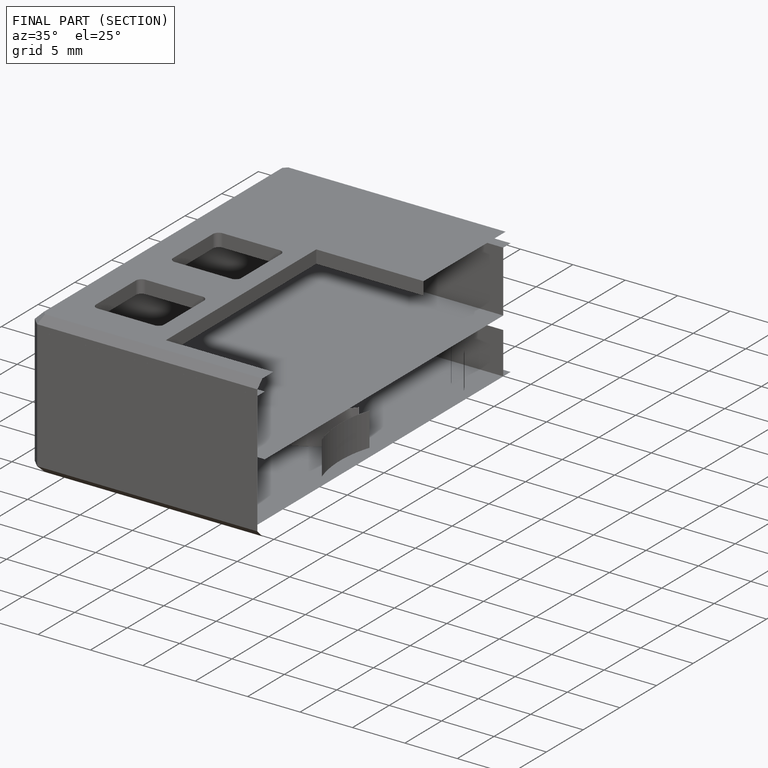
[diagram: finished part — half-section view (interior)]
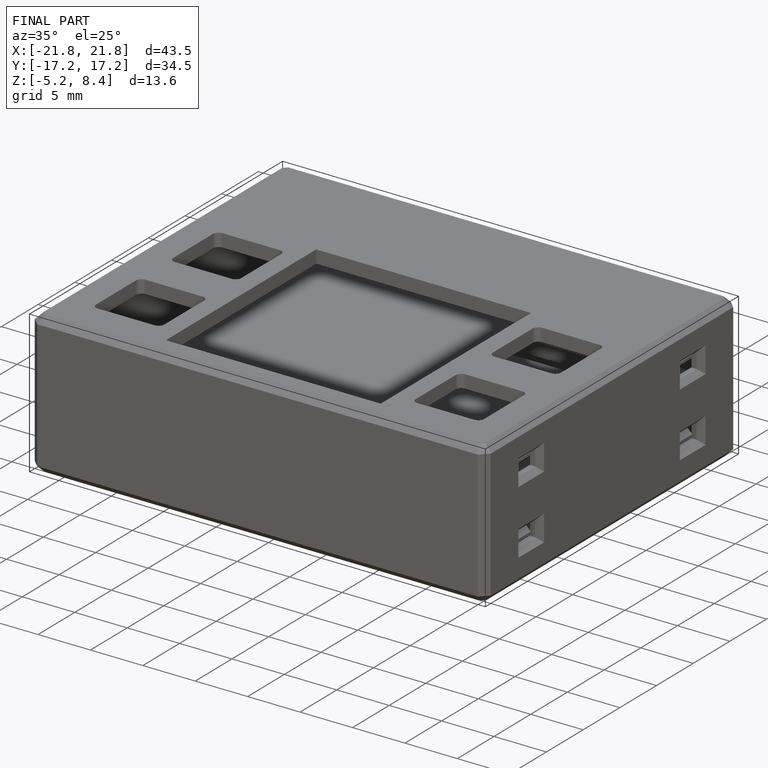
[diagram: finished part — iso view with bounding-box wireframe]
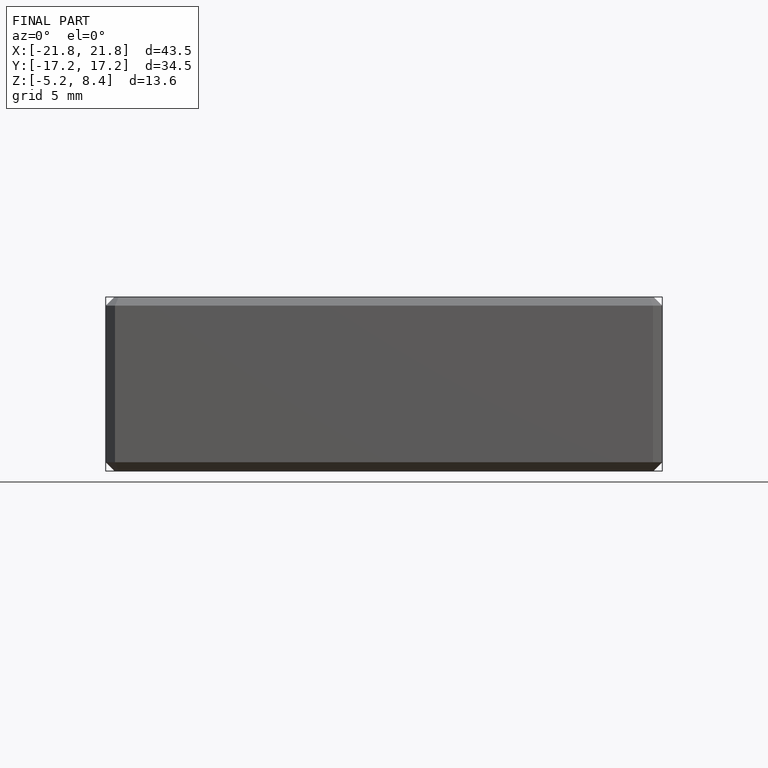
[diagram: finished part — front view with bounding-box wireframe]
